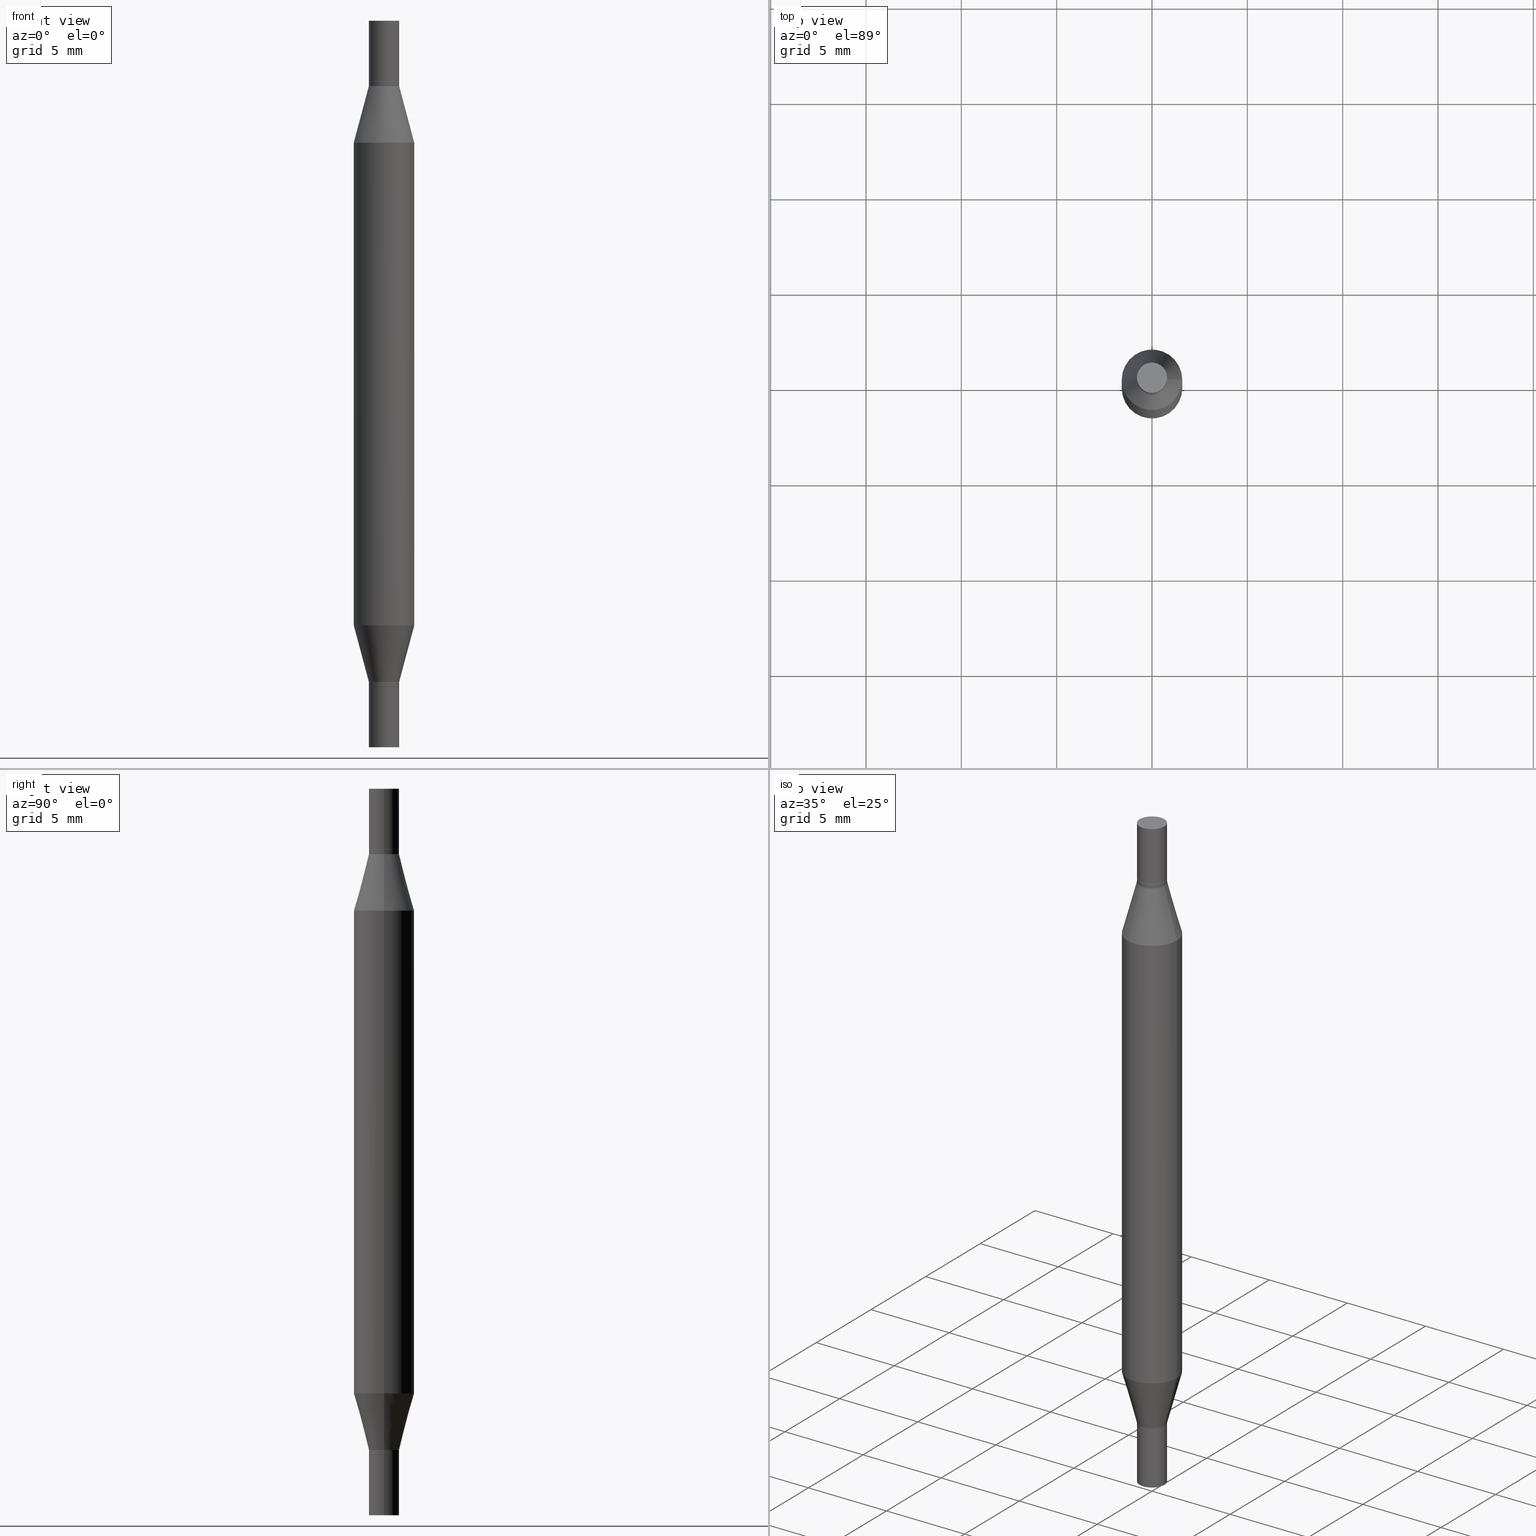
[diagram: canonical four-view strip — front | top / right | iso, engineering-drawing reading convention]
A machine part, canonical four-view strip (front | top / right | iso — engineering-drawing reading convention). The complete STEP part file that produces these views, byte-faithful:
ISO-10303-21;
HEADER;
FILE_DESCRIPTION (( 'STEP AP203' ),
    '1' );
FILE_NAME ('31172.STEP',
    '2024-03-04T15:58:28',
    ( '' ),
    ( '' ),
    'SwSTEP 2.0',
    'SolidWorks 2023',
    '' );
FILE_SCHEMA (( 'CONFIG_CONTROL_DESIGN' ));
ENDSEC;

DATA;
#1 = EDGE_CURVE ( 'NONE', #288, #554, #208, .T. ) ;
#2 = VERTEX_POINT ( 'NONE', #670 ) ;
#3 = CYLINDRICAL_SURFACE ( 'NONE', #13, 0.03124999999999992367 ) ;
#4 = CARTESIAN_POINT ( 'NONE',  ( 3.362519608504562821E-29, -4.362328197816536805E-16, -0.1249999999999993477 ) ) ;
#5 = ORIENTED_EDGE ( 'NONE', *, *, #440, .F. ) ;
#6 = ORIENTED_EDGE ( 'NONE', *, *, #871, .T. ) ;
#7 = CYLINDRICAL_SURFACE ( 'NONE', #793, 0.03124999999999992367 ) ;
#8 = DIRECTION ( 'NONE',  ( -0.2588190451025224048, 5.211531920934556564E-15, 0.9659258262890678681 ) ) ;
#9 = VERTEX_POINT ( 'NONE', #831 ) ;
#10 = AXIS2_PLACEMENT_3D ( 'NONE', #234, #873, #941 ) ;
#11 = CARTESIAN_POINT ( 'NONE',  ( 3.362519608504562821E-29, -4.362328197816536805E-16, -0.1249999999999993477 ) ) ;
#12 = CIRCLE ( 'NONE', #463, 0.03124999999999992367 ) ;
#13 = AXIS2_PLACEMENT_3D ( 'NONE', #299, #309, #617 ) ;
#14 = LINE ( 'NONE', #623, #563 ) ;
#15 = AXIS2_PLACEMENT_3D ( 'NONE', #859, #105, #943 ) ;
#16 = DIRECTION ( 'NONE',  ( -2.445468806185136597E-29, 3.491481338843145583E-15, 1.000000000000000000 ) ) ;
#17 = DIRECTION ( 'NONE',  ( 1.000000000000000000, -6.982962677686266711E-15, 0.000000000000000000 ) ) ;
#18 = CARTESIAN_POINT ( 'NONE',  ( -0.03124999999999992367, -2.567603083009074019E-16, -0.1349999999999997868 ) ) ;
#19 = EDGE_CURVE ( 'NONE', #2, #273, #753, .T. ) ;
#20 = CARTESIAN_POINT ( 'NONE',  ( 3.576687321579069994E-29, -5.368277968210015545E-15, -1.500000000000000222 ) ) ;
#21 = ORIENTED_EDGE ( 'NONE', *, *, #871, .F. ) ;
#22 = DIRECTION ( 'NONE',  ( 1.000000000000000000, -6.982962677686265133E-15, 0.000000000000000000 ) ) ;
#23 = EDGE_CURVE ( 'NONE', #701, #216, #132, .T. ) ;
#24 = CARTESIAN_POINT ( 'NONE',  ( 3.668203209277704895E-29, -5.237222008264718177E-15, -1.500000000000000222 ) ) ;
#25 = ORIENTED_EDGE ( 'NONE', *, *, #421, .F. ) ;
#26 = APPROVAL_ROLE ( '' ) ;
#27 = DIRECTION ( 'NONE',  ( -2.445468806185136597E-29, -3.491805094961124077E-15, -1.000000000000000000 ) ) ;
#28 = DIRECTION ( 'NONE',  ( -2.445468806185136597E-29, 3.491481338843145583E-15, 1.000000000000000000 ) ) ;
#29 = ADVANCED_FACE ( 'NONE', ( #475 ), #97, .F. ) ;
#30 = EDGE_LOOP ( 'NONE', ( #113, #794, #640, #6 ) ) ;
#31 = DATE_AND_TIME ( #633, #280 ) ;
#32 = LINE ( 'NONE', #95, #528 ) ;
#33 = DIRECTION ( 'NONE',  ( 1.000000000000000000, -6.982962677686265922E-15, 4.876176775795935793E-29 ) ) ;
#34 = ORIENTED_EDGE ( 'NONE', *, *, #137, .T. ) ;
#35 = LINE ( 'NONE', #330, #101 ) ;
#36 = DIRECTION ( 'NONE',  ( -2.445468806185136597E-29, 3.491481338843145583E-15, 1.000000000000000000 ) ) ;
#37 = ORIENTED_EDGE ( 'NONE', *, *, #704, .F. ) ;
#38 = DIRECTION ( 'NONE',  ( -0.000000000000000000, -3.491643216902134830E-15, -1.000000000000000000 ) ) ;
#39 = DIRECTION ( 'NONE',  ( 1.000000000000000000, -6.982962677686266711E-15, 0.000000000000000000 ) ) ;
#40 = ADVANCED_FACE ( 'NONE', ( #470 ), #384, .T. ) ;
#41 = CIRCLE ( 'NONE', #226, 0.03124999999999992367 ) ;
#42 = CARTESIAN_POINT ( 'NONE',  ( 3.362519608504562821E-29, -4.362328197816536805E-16, -0.1249999999999993477 ) ) ;
#43 = EDGE_LOOP ( 'NONE', ( #832, #764 ) ) ;
#44 = LINE ( 'NONE', #486, #612 ) ;
#45 = ADVANCED_FACE ( 'NONE', ( #157 ), #712, .T. ) ;
#46 = FACE_OUTER_BOUND ( 'NONE', #214, .T. ) ;
#47 = ORIENTED_EDGE ( 'NONE', *, *, #329, .F. ) ;
#48 = DIRECTION ( 'NONE',  ( -2.445468806185136597E-29, 3.491481338843145583E-15, 1.000000000000000000 ) ) ;
#49 = LINE ( 'NONE', #344, #579 ) ;
#50 = ADVANCED_FACE ( 'NONE', ( #856 ), #780, .F. ) ;
#51 = ORIENTED_EDGE ( 'NONE', *, *, #663, .T. ) ;
#52 = APPROVAL_DATE_TIME ( #282, #303 ) ;
#53 = DIRECTION ( 'NONE',  ( -2.445468806185136597E-29, 3.491481338843145583E-15, 1.000000000000000000 ) ) ;
#54 = DIRECTION ( 'NONE',  ( 2.445468806185136597E-29, 3.491805094961124077E-15, 1.000000000000000000 ) ) ;
#55 = PRODUCT ( '31172', '31172', '', ( #94 ) ) ;
#56 = CONICAL_SURFACE ( 'NONE', #193, 0.03074999999999999956, 0.7853981633974739252 ) ;
#57 = CONICAL_SURFACE ( 'NONE', #775, 0.03124999999999992367, 0.2617993877991511287 ) ;
#58 = ORIENTED_EDGE ( 'NONE', *, *, #909, .T. ) ;
#59 = DIRECTION ( 'NONE',  ( -2.445468806185136597E-29, 3.491481338843145583E-15, 1.000000000000000000 ) ) ;
#60 = DIRECTION ( 'NONE',  ( 1.000000000000000000, -6.982962677686270655E-15, 0.000000000000000000 ) ) ;
#61 = DIRECTION ( 'NONE',  ( -2.445468806185136877E-29, -3.491805094961123683E-15, -1.000000000000000000 ) ) ;
#62 = EDGE_LOOP ( 'NONE', ( #371, #5, #108, #136 ) ) ;
#63 = DIRECTION ( 'NONE',  ( -2.445468806185136597E-29, -3.491805094961124077E-15, -1.000000000000000000 ) ) ;
#64 = ADVANCED_FACE ( 'NONE', ( #480 ), #635, .F. ) ;
#65 = CONICAL_SURFACE ( 'NONE', #628, 0.03124999999999992367, 0.2617993877991511287 ) ;
#66 = ORIENTED_EDGE ( 'NONE', *, *, #685, .T. ) ;
#67 = CONICAL_SURFACE ( 'NONE', #260, 0.03074999999999999956, 0.7853981633974739252 ) ;
#68 = DIRECTION ( 'NONE',  ( -2.445468806185136597E-29, -3.491805094961124077E-15, -1.000000000000000000 ) ) ;
#69 = AXIS2_PLACEMENT_3D ( 'NONE', #404, #249, #863 ) ;
#70 = DIRECTION ( 'NONE',  ( -2.445468806185136597E-29, -3.491805094961124077E-15, -1.000000000000000000 ) ) ;
#71 = EDGE_CURVE ( 'NONE', #667, #412, #479, .T. ) ;
#72 = ORIENTED_EDGE ( 'NONE', *, *, #691, .T. ) ;
#73 = ORIENTED_EDGE ( 'NONE', *, *, #141, .T. ) ;
#74 = CARTESIAN_POINT ( 'NONE',  ( 0.03125000000000000000, -6.544504034593494659E-16, -0.1249999999999993477 ) ) ;
#75 = CARTESIAN_POINT ( 'NONE',  ( 3.362519608504562821E-29, -4.362328197816536805E-16, -0.1249999999999993477 ) ) ;
#76 = ORIENTED_EDGE ( 'NONE', *, *, #248, .T. ) ;
#77 = ADVANCED_FACE ( 'NONE', ( #620 ), #923, .T. ) ;
#78 = CARTESIAN_POINT ( 'NONE',  ( 0.000000000000000000, 0.000000000000000000, 0.000000000000000000 ) ) ;
#79 = DIRECTION ( 'NONE',  ( 1.000000000000000000, -6.982962677686265922E-15, 0.000000000000000000 ) ) ;
#80 = DIRECTION ( 'NONE',  ( 0.2588190451025224048, 1.565188264969613882E-15, 0.9659258262890678681 ) ) ;
#81 = CONICAL_SURFACE ( 'NONE', #209, 0.03124999999999992367, 0.2617993877991511287 ) ;
#82 = ADVANCED_FACE ( 'NONE', ( #847 ), #718, .F. ) ;
#83 = DIRECTION ( 'NONE',  ( -2.438088387897959208E-29, -3.491805094961123683E-15, -1.000000000000000000 ) ) ;
#84 = VECTOR ( 'NONE', #147, 39.37007874015748143 ) ;
#85 = CONICAL_SURFACE ( 'NONE', #370, 0.03124999999999992367, 0.2617993877991511287 ) ;
#86 = LINE ( 'NONE', #513, #728 ) ;
#87 = DIRECTION ( 'NONE',  ( 2.438088387897959208E-29, 3.491805094961123683E-15, 1.000000000000000000 ) ) ;
#88 = ORIENTED_EDGE ( 'NONE', *, *, #691, .F. ) ;
#89 = CARTESIAN_POINT ( 'NONE',  ( 0.03074999999999999956, -6.509589221205063602E-16, -0.1249999999999993477 ) ) ;
#90 = CARTESIAN_POINT ( 'NONE',  ( -0.03125000000000000000, -3.604438916223908722E-18, -0.1249999999999993477 ) ) ;
#91 = EDGE_CURVE ( 'NONE', #760, #338, #416, .T. ) ;
#92 = CARTESIAN_POINT ( 'NONE',  ( 2.182175836777294352E-16, 0.03124999999999955938, -0.1249999999999996253 ) ) ;
#93 = EDGE_LOOP ( 'NONE', ( #498, #521, #976, #434 ) ) ;
#94 = MECHANICAL_CONTEXT ( 'NONE', #669, 'mechanical' ) ;
#95 = CARTESIAN_POINT ( 'NONE',  ( -0.03124999999999992367, -5.023074262922841489E-15, -1.499999999999999556 ) ) ;
#96 = PRODUCT_DEFINITION ( 'UNKNOWN', '', #680, #497 ) ;
#97 = PLANE ( 'NONE',  #850 ) ;
#98 = ORIENTED_EDGE ( 'NONE', *, *, #297, .F. ) ;
#99 = PERSON_AND_ORGANIZATION ( #803, #855 ) ;
#100 = DIRECTION ( 'NONE',  ( 1.000000000000000000, -6.982962677686265922E-15, 0.000000000000000000 ) ) ;
#101 = VECTOR ( 'NONE', #950, 39.37007874015748143 ) ;
#102 = CIRCLE ( 'NONE', #874, 0.03124999999999992367 ) ;
#103 = DIRECTION ( 'NONE',  ( -2.445468806185136597E-29, 3.491481338843145583E-15, 1.000000000000000000 ) ) ;
#104 = ORIENTED_EDGE ( 'NONE', *, *, #493, .T. ) ;
#105 = DIRECTION ( 'NONE',  ( 2.445468806185136597E-29, 3.491805094961124077E-15, 1.000000000000000000 ) ) ;
#106 = CARTESIAN_POINT ( 'NONE',  ( 3.362519608504562821E-29, -4.362328197816536805E-16, -0.1249999999999993477 ) ) ;
#107 = DIRECTION ( 'NONE',  ( 1.000000000000000000, -6.982962677686265133E-15, 0.000000000000000000 ) ) ;
#108 = ORIENTED_EDGE ( 'NONE', *, *, #922, .T. ) ;
#109 = DIRECTION ( 'NONE',  ( -0.7071067811865656694, 2.382025595312421833E-15, -0.7071067811865294761 ) ) ;
#110 = ADVANCED_FACE ( 'NONE', ( #311 ), #700, .F. ) ;
#111 = FACE_OUTER_BOUND ( 'NONE', #799, .T. ) ;
#112 = DIRECTION ( 'NONE',  ( 0.2588190451025224048, -5.180148453816013512E-15, -0.9659258262890678681 ) ) ;
#113 = ORIENTED_EDGE ( 'NONE', *, *, #427, .F. ) ;
#114 = PERSON_AND_ORGANIZATION_ROLE ( 'creator' ) ;
#115 = ADVANCED_FACE ( 'NONE', ( #639 ), #245, .T. ) ;
#116 = DIRECTION ( 'NONE',  ( 1.000000000000000000, -6.982962677686280121E-15, 0.000000000000000000 ) ) ;
#117 = AXIS2_PLACEMENT_3D ( 'NONE', #4, #853, #374 ) ;
#118 = AXIS2_PLACEMENT_3D ( 'NONE', #106, #410, #726 ) ;
#119 = CIRCLE ( 'NONE', #835, 0.03074999999999999956 ) ;
#120 = PLANE ( 'NONE',  #481 ) ;
#121 = LOCAL_TIME ( 10, 58, 28.00000000000000000, #484 ) ;
#122 = ORIENTED_EDGE ( 'NONE', *, *, #551, .F. ) ;
#123 = DIRECTION ( 'NONE',  ( -0.7071067811865656694, 2.382025595312421833E-15, -0.7071067811865294761 ) ) ;
#124 = DIRECTION ( 'NONE',  ( 1.000000000000000000, -6.982962677686276966E-15, 0.000000000000000000 ) ) ;
#125 = ORIENTED_EDGE ( 'NONE', *, *, #91, .T. ) ;
#126 = DATE_AND_TIME ( #418, #465 ) ;
#127 = CARTESIAN_POINT ( 'NONE',  ( -0.03124999999999992367, -2.235881598987740455E-16, -0.1254999999999992510 ) ) ;
#128 = EDGE_CURVE ( 'NONE', #574, #660, #611, .T. ) ;
#129 = CARTESIAN_POINT ( 'NONE',  ( 0.000000000000000000, -2.618732412676602503E-15, -0.7499999999999997780 ) ) ;
#130 = EDGE_LOOP ( 'NONE', ( #66, #752, #163, #444 ) ) ;
#131 = DIRECTION ( 'NONE',  ( 1.000000000000000000, -6.982962677686265133E-15, 0.000000000000000000 ) ) ;
#132 = CIRCLE ( 'NONE', #399, 0.03125000000000000000 ) ;
#133 = DIRECTION ( 'NONE',  ( 2.445468806185136597E-29, 3.491805094961124077E-15, 1.000000000000000000 ) ) ;
#134 = ORIENTED_EDGE ( 'NONE', *, *, #347, .F. ) ;
#135 = CARTESIAN_POINT ( 'NONE',  ( 0.000000000000000000, -5.237464825353201062E-15, -1.499999999999999556 ) ) ;
#136 = ORIENTED_EDGE ( 'NONE', *, *, #966, .T. ) ;
#137 = EDGE_CURVE ( 'NONE', #667, #554, #561, .T. ) ;
#138 = DIRECTION ( 'NONE',  ( 2.445468806185136597E-29, 3.491805094961124077E-15, 1.000000000000000000 ) ) ;
#139 = ORIENTED_EDGE ( 'NONE', *, *, #262, .F. ) ;
#140 = DIRECTION ( 'NONE',  ( 1.000000000000000000, -6.982962677686266711E-15, 0.000000000000000000 ) ) ;
#141 = EDGE_CURVE ( 'NONE', #729, #697, #771, .T. ) ;
#142 = ORIENTED_EDGE ( 'NONE', *, *, #672, .F. ) ;
#143 = CONICAL_SURFACE ( 'NONE', #358, 0.03074999999999999956, 0.7853981633974739252 ) ;
#144 = AXIS2_PLACEMENT_3D ( 'NONE', #827, #138, #445 ) ;
#145 = EDGE_LOOP ( 'NONE', ( #235, #714 ) ) ;
#146 = DIRECTION ( 'NONE',  ( -2.445468806185136597E-29, 3.491481338843145583E-15, 1.000000000000000000 ) ) ;
#147 = DIRECTION ( 'NONE',  ( -0.2588190451025224048, -1.597197180879706043E-15, -0.9659258262890678681 ) ) ;
#148 = ADVANCED_FACE ( 'NONE', ( #928 ), #591, .F. ) ;
#149 = EDGE_LOOP ( 'NONE', ( #37, #302, #488, #424 ) ) ;
#150 = DIRECTION ( 'NONE',  ( 1.000000000000000000, -6.982962677686266711E-15, 4.876176775795935793E-29 ) ) ;
#151 = DIRECTION ( 'NONE',  ( 2.445468806185136597E-29, 3.491805094961124077E-15, 1.000000000000000000 ) ) ;
#152 = EDGE_CURVE ( 'NONE', #456, #185, #411, .T. ) ;
#153 = ORIENTED_EDGE ( 'NONE', *, *, #347, .T. ) ;
#154 = CYLINDRICAL_SURFACE ( 'NONE', #978, 0.06250000000000000000 ) ;
#155 = CARTESIAN_POINT ( 'NONE',  ( 0.06250000000000000000, -5.673899992708591942E-15, -1.499999999999999556 ) ) ;
#156 = CC_DESIGN_APPROVAL ( #927, ( #680 ) ) ;
#157 = FACE_OUTER_BOUND ( 'NONE', #844, .T. ) ;
#158 = ORIENTED_EDGE ( 'NONE', *, *, #1, .T. ) ;
#159 = LINE ( 'NONE', #533, #808 ) ;
#160 = CIRCLE ( 'NONE', #343, 0.03125000000000000000 ) ;
#161 = CARTESIAN_POINT ( 'NONE',  ( 0.000000000000000000, 0.000000000000000000, 0.000000000000000000 ) ) ;
#162 = DIRECTION ( 'NONE',  ( 2.438088387897959208E-29, 3.491805094961123683E-15, 1.000000000000000000 ) ) ;
#163 = ORIENTED_EDGE ( 'NONE', *, *, #71, .F. ) ;
#164 = DIRECTION ( 'NONE',  ( 0.7071067811865656694, -7.406779323393341342E-15, -0.7071067811865294761 ) ) ;
#165 = ADVANCED_FACE ( 'NONE', ( #572 ), #562, .T. ) ;
#166 = CARTESIAN_POINT ( 'NONE',  ( 3.338064920442711275E-29, -4.711508707312672701E-16, -0.1349999999999997868 ) ) ;
#167 = DIRECTION ( 'NONE',  ( -2.445468806185136597E-29, 3.491481338843145583E-15, 1.000000000000000000 ) ) ;
#168 = ORIENTED_EDGE ( 'NONE', *, *, #631, .F. ) ;
#169 =( LENGTH_UNIT ( ) NAMED_UNIT ( * ) SI_UNIT ( $, .METRE. ) );
#170 = DIRECTION ( 'NONE',  ( 2.445468806185136597E-29, 3.491805094961124077E-15, 1.000000000000000000 ) ) ;
#171 = DIRECTION ( 'NONE',  ( -1.000000000000000000, 6.982962677686265922E-15, -4.876176775795935793E-29 ) ) ;
#172 = MANIFOLD_SOLID_BREP ( 'Body-Move/Copy2[1]', #709 ) ;
#173 = ORIENTED_EDGE ( 'NONE', *, *, #369, .T. ) ;
#174 = LINE ( 'NONE', #89, #452 ) ;
#175 = CARTESIAN_POINT ( 'NONE',  ( 3.362519608504562821E-29, -4.362328197816536805E-16, -0.1249999999999993477 ) ) ;
#176 = CIRCLE ( 'NONE', #597, 0.06250000000000000000 ) ;
#177 = AXIS2_PLACEMENT_3D ( 'NONE', #135, #885, #520 ) ;
#178 = ADVANCED_FACE ( 'NONE', ( #46 ), #65, .T. ) ;
#179 = DIRECTION ( 'NONE',  ( -2.445468806185136597E-29, -3.491805094961124077E-15, -1.000000000000000000 ) ) ;
#180 = ORIENTED_EDGE ( 'NONE', *, *, #778, .F. ) ;
#181 = CARTESIAN_POINT ( 'NONE',  ( 0.03125000000000000000, -6.544504034593494659E-16, -0.1249999999999993477 ) ) ;
#182 = FACE_OUTER_BOUND ( 'NONE', #376, .T. ) ;
#183 = DIRECTION ( 'NONE',  ( 1.000000000000000000, -6.982962677686280121E-15, 0.000000000000000000 ) ) ;
#184 = ADVANCED_FACE ( 'NONE', ( #490 ), #694, .T. ) ;
#185 = VERTEX_POINT ( 'NONE', #187 ) ;
#186 = CARTESIAN_POINT ( 'NONE',  ( 0.03125000000000000000, -2.179747665892097452E-16, 5.463695987328526437E-16 ) ) ;
#187 = CARTESIAN_POINT ( 'NONE',  ( 0.03124999999999992367, -6.561963060068291569E-16, -0.1254999999999992510 ) ) ;
#188 = EDGE_LOOP ( 'NONE', ( #483, #809, #76, #969 ) ) ;
#189 = CLOSED_SHELL ( 'NONE', ( #178, #791, #165, #275, #287, #609, #507, #848, #395, #115, #811, #556, #40, #858, #474, #798 ) ) ;
#190 = EDGE_CURVE ( 'NONE', #636, #905, #336, .T. ) ;
#191 = DIRECTION ( 'NONE',  ( 2.445468806185136597E-29, 3.491805094961124077E-15, 1.000000000000000000 ) ) ;
#192 = AXIS2_PLACEMENT_3D ( 'NONE', #42, #659, #894 ) ;
#193 = AXIS2_PLACEMENT_3D ( 'NONE', #864, #27, #406 ) ;
#194 = VECTOR ( 'NONE', #109, 39.37007874015748143 ) ;
#195 = CARTESIAN_POINT ( 'NONE',  ( 3.338064920442711275E-29, -4.711508707312672701E-16, -0.1349999999999997868 ) ) ;
#196 = EDGE_LOOP ( 'NONE', ( #607, #153 ) ) ;
#197 = CALENDAR_DATE ( 2024, 4, 3 ) ;
#198 = CARTESIAN_POINT ( 'NONE',  ( -0.03074999999999999956, -2.252725063501790759E-16, -0.1249999999999993477 ) ) ;
#199 = EDGE_CURVE ( 'NONE', #660, #574, #886, .T. ) ;
#200 = CARTESIAN_POINT ( 'NONE',  ( 0.000000000000000000, -5.237464825353201062E-15, -1.499999999999999556 ) ) ;
#201 = ORIENTED_EDGE ( 'NONE', *, *, #248, .F. ) ;
#202 = DATE_TIME_ROLE ( 'creation_date' ) ;
#203 = CARTESIAN_POINT ( 'NONE',  ( 0.03125000000000000000, -5.455439591942414011E-15, -1.500000000000000222 ) ) ;
#204 = FACE_OUTER_BOUND ( 'NONE', #781, .T. ) ;
#205 = ORIENTED_EDGE ( 'NONE', *, *, #819, .F. ) ;
#206 = CARTESIAN_POINT ( 'NONE',  ( 3.052858238161220135E-29, -4.358672472825856581E-15, -1.248373412263472870 ) ) ;
#207 = AXIS2_PLACEMENT_3D ( 'NONE', #705, #28, #696 ) ;
#208 = CIRCLE ( 'NONE', #224, 0.06250000000000000000 ) ;
#209 = AXIS2_PLACEMENT_3D ( 'NONE', #448, #779, #758 ) ;
#210 = CIRCLE ( 'NONE', #872, 0.03124999999999992367 ) ;
#211 = EDGE_CURVE ( 'NONE', #360, #625, #527, .T. ) ;
#212 = VECTOR ( 'NONE', #61, 39.37007874015748143 ) ;
#213 = DIRECTION ( 'NONE',  ( -0.000000000000000000, -3.491643216902134830E-15, -1.000000000000000000 ) ) ;
#214 = EDGE_LOOP ( 'NONE', ( #397, #173, #532, #393 ) ) ;
#215 = LINE ( 'NONE', #658, #212 ) ;
#216 = VERTEX_POINT ( 'NONE', #946 ) ;
#217 = EDGE_CURVE ( 'NONE', #332, #895, #952, .T. ) ;
#218 = EDGE_LOOP ( 'NONE', ( #594, #651 ) ) ;
#219 = DIRECTION ( 'NONE',  ( -2.445468806185136877E-29, 3.491481338843145188E-15, 1.000000000000000000 ) ) ;
#220 = VERTEX_POINT ( 'NONE', #279 ) ;
#221 = CYLINDRICAL_SURFACE ( 'NONE', #548, 0.03125000000000000000 ) ;
#222 = ADVANCED_FACE ( 'NONE', ( #878 ), #428, .T. ) ;
#223 = CARTESIAN_POINT ( 'NONE',  ( -0.03124999999999992367, -2.567603083009074019E-16, -0.1349999999999997868 ) ) ;
#224 = AXIS2_PLACEMENT_3D ( 'NONE', #972, #225, #60 ) ;
#225 = DIRECTION ( 'NONE',  ( -2.445468806185136597E-29, 3.491481338843145583E-15, 1.000000000000000000 ) ) ;
#226 = AXIS2_PLACEMENT_3D ( 'NONE', #668, #970, #596 ) ;
#227 = DIRECTION ( 'NONE',  ( 1.000000000000000000, -6.982962677686262766E-15, 0.000000000000000000 ) ) ;
#228 = DIRECTION ( 'NONE',  ( -2.445468806185136597E-29, -3.491805094961124077E-15, -1.000000000000000000 ) ) ;
#229 = CC_DESIGN_DATE_AND_TIME_ASSIGNMENT ( #126, #492, ( #517 ) ) ;
#230 = ORIENTED_EDGE ( 'NONE', *, *, #778, .T. ) ;
#231 = DIMENSIONAL_EXPONENTS ( 1.000000000000000000, 0.000000000000000000, 0.000000000000000000, 0.000000000000000000, 0.000000000000000000, 0.000000000000000000, 0.000000000000000000 ) ;
#232 = DIRECTION ( 'NONE',  ( 1.000000000000000000, -6.982962677686265133E-15, 0.000000000000000000 ) ) ;
#233 = LINE ( 'NONE', #223, #84 ) ;
#234 = CARTESIAN_POINT ( 'NONE',  ( 0.000000000000000000, -5.237464825353201062E-15, -1.499999999999999556 ) ) ;
#235 = ORIENTED_EDGE ( 'NONE', *, *, #512, .T. ) ;
#236 = CYLINDRICAL_SURFACE ( 'NONE', #630, 0.03124999999999992367 ) ;
#237 = DIRECTION ( 'NONE',  ( -0.2588190451025224048, -1.597197180879706043E-15, -0.9659258262890678681 ) ) ;
#238 = AXIS2_PLACEMENT_3D ( 'NONE', #20, #407, #33 ) ;
#239 = DIRECTION ( 'NONE',  ( 2.445468806185136597E-29, 3.491805094961124077E-15, 1.000000000000000000 ) ) ;
#240 = AXIS2_PLACEMENT_3D ( 'NONE', #610, #70, #461 ) ;
#241 = ADVANCED_FACE ( 'NONE', ( #733 ), #120, .F. ) ;
#242 = AXIS2_PLACEMENT_3D ( 'NONE', #394, #703, #22 ) ;
#243 = ORIENTED_EDGE ( 'NONE', *, *, #763, .T. ) ;
#244 = DIRECTION ( 'NONE',  ( 2.445468806185136597E-29, 3.491805094961124077E-15, 1.000000000000000000 ) ) ;
#245 = CYLINDRICAL_SURFACE ( 'NONE', #10, 0.03124999999999992367 ) ;
#246 = UNCERTAINTY_MEASURE_WITH_UNIT (LENGTH_MEASURE( 1.000000000000000082E-05 ), #795, 'distance_accuracy_value', 'NONE');
#247 = EDGE_LOOP ( 'NONE', ( #867, #673, #840, #690 ) ) ;
#248 = EDGE_CURVE ( 'NONE', #409, #876, #852, .T. ) ;
#249 = DIRECTION ( 'NONE',  ( 0.000000000000000000, 0.000000000000000000, 1.000000000000000000 ) ) ;
#250 = DIRECTION ( 'NONE',  ( -2.445468806185136597E-29, -3.491805094961124077E-15, -1.000000000000000000 ) ) ;
#251 = DIRECTION ( 'NONE',  ( 1.000000000000000000, -6.982962677686262766E-15, 0.000000000000000000 ) ) ;
#252 = EDGE_LOOP ( 'NONE', ( #281, #514, #443, #578 ) ) ;
#253 = CARTESIAN_POINT ( 'NONE',  ( 3.362519608504562821E-29, -4.800786840909326507E-15, -1.375000000000000222 ) ) ;
#254 = DIRECTION ( 'NONE',  ( -2.445468806185136877E-29, -3.491805094961123683E-15, -1.000000000000000000 ) ) ;
#255 = EDGE_CURVE ( 'NONE', #338, #701, #49, .T. ) ;
#256 = DIRECTION ( 'NONE',  ( 2.445468806185136597E-29, 3.491805094961124077E-15, 1.000000000000000000 ) ) ;
#257 = VERTEX_POINT ( 'NONE', #508 ) ;
#258 =( NAMED_UNIT ( * ) SI_UNIT ( $, .STERADIAN. ) SOLID_ANGLE_UNIT ( ) );
#259 = DIRECTION ( 'NONE',  ( -2.445468806185136877E-29, 3.491481338843145188E-15, 1.000000000000000000 ) ) ;
#260 = AXIS2_PLACEMENT_3D ( 'NONE', #75, #228, #79 ) ;
#261 = VECTOR ( 'NONE', #123, 39.37007874015748143 ) ;
#262 = EDGE_CURVE ( 'NONE', #760, #216, #650, .T. ) ;
#263 = CARTESIAN_POINT ( 'NONE',  ( 0.03074999999999999956, -6.509589221205063602E-16, -0.1249999999999993477 ) ) ;
#264 = EDGE_LOOP ( 'NONE', ( #471, #243, #104, #168 ) ) ;
#265 = PERSON_AND_ORGANIZATION ( #803, #855 ) ;
#266 = CYLINDRICAL_SURFACE ( 'NONE', #614, 0.03124999999999992367 ) ;
#267 = CARTESIAN_POINT ( 'NONE',  ( 3.362519608504562821E-29, -4.800786840909326507E-15, -1.375000000000000222 ) ) ;
#268 = EDGE_CURVE ( 'NONE', #388, #220, #773, .T. ) ;
#269 = ORIENTED_EDGE ( 'NONE', *, *, #922, .F. ) ;
#270 = APPROVAL_DATE_TIME ( #425, #927 ) ;
#271 = CARTESIAN_POINT ( 'NONE',  ( 3.361296874101471140E-29, -4.379787223291353929E-16, -0.1254999999999992510 ) ) ;
#272 = CYLINDRICAL_SURFACE ( 'NONE', #306, 0.06250000000000000000 ) ;
#273 = VERTEX_POINT ( 'NONE', #359 ) ;
#274 = PERSON_AND_ORGANIZATION ( #803, #855 ) ;
#275 = ADVANCED_FACE ( 'NONE', ( #955 ), #272, .T. ) ;
#276 = DIRECTION ( 'NONE',  ( 1.000000000000000000, -6.982962677686270655E-15, 0.000000000000000000 ) ) ;
#277 = CC_DESIGN_APPROVAL ( #303, ( #517 ) ) ;
#278 = CIRCLE ( 'NONE', #947, 0.06250000000000000000 ) ;
#279 = CARTESIAN_POINT ( 'NONE',  ( 0.03074999999999999956, -5.015512943248179335E-15, -1.375000000000000222 ) ) ;
#280 = LOCAL_TIME ( 10, 58, 28.00000000000000000, #324 ) ;
#281 = ORIENTED_EDGE ( 'NONE', *, *, #909, .F. ) ;
#282 = DATE_AND_TIME ( #965, #529 ) ;
#283 = CARTESIAN_POINT ( 'NONE',  ( 3.052858238161220135E-29, -8.783881839976021314E-16, -0.2516265877365266856 ) ) ;
#284 = CARTESIAN_POINT ( 'NONE',  ( 3.338064920442711275E-29, -4.765872027520892492E-15, -1.364999999999999769 ) ) ;
#285 = ORIENTED_EDGE ( 'NONE', *, *, #152, .T. ) ;
#286 = DIRECTION ( 'NONE',  ( 1.000000000000000000, -6.982962677686266711E-15, 0.000000000000000000 ) ) ;
#287 = ADVANCED_FACE ( 'NONE', ( #968 ), #81, .T. ) ;
#288 = VERTEX_POINT ( 'NONE', #469 ) ;
#289 = LINE ( 'NONE', #426, #665 ) ;
#290 = AXIS2_PLACEMENT_3D ( 'NONE', #195, #179, #423 ) ;
#291 = EDGE_CURVE ( 'NONE', #895, #554, #818, .T. ) ;
#292 = AXIS2_PLACEMENT_3D ( 'NONE', #622, #68, #925 ) ;
#293 = ORIENTED_EDGE ( 'NONE', *, *, #600, .T. ) ;
#294 = CC_DESIGN_APPROVAL ( #499, ( #96 ) ) ;
#295 = FACE_OUTER_BOUND ( 'NONE', #363, .T. ) ;
#296 = ORIENTED_EDGE ( 'NONE', *, *, #141, .F. ) ;
#297 = EDGE_CURVE ( 'NONE', #338, #760, #516, .T. ) ;
#298 = ORIENTED_EDGE ( 'NONE', *, *, #672, .T. ) ;
#299 = CARTESIAN_POINT ( 'NONE',  ( 0.000000000000000000, 0.000000000000000000, 0.000000000000000000 ) ) ;
#300 = LINE ( 'NONE', #606, #451 ) ;
#301 = EDGE_LOOP ( 'NONE', ( #323, #73 ) ) ;
#302 = ORIENTED_EDGE ( 'NONE', *, *, #375, .T. ) ;
#303 = APPROVAL ( #510, 'UNSPECIFIED' ) ;
#304 = FACE_OUTER_BOUND ( 'NONE', #890, .T. ) ;
#305 = CARTESIAN_POINT ( 'NONE',  ( 3.362519608504562821E-29, -4.362328197816536805E-16, -0.1249999999999993477 ) ) ;
#306 = AXIS2_PLACEMENT_3D ( 'NONE', #666, #502, #812 ) ;
#307 = ORIENTED_EDGE ( 'NONE', *, *, #91, .F. ) ;
#308 = CIRCLE ( 'NONE', #405, 0.03124999999999992367 ) ;
#309 = DIRECTION ( 'NONE',  ( -2.445468806185136597E-29, 3.491481338843145583E-15, 1.000000000000000000 ) ) ;
#310 = CARTESIAN_POINT ( 'NONE',  ( 0.03124999999999992367, -6.893684544089624146E-16, -0.1349999999999997868 ) ) ;
#311 = FACE_OUTER_BOUND ( 'NONE', #857, .T. ) ;
#312 = ORIENTED_EDGE ( 'NONE', *, *, #590, .F. ) ;
#313 = DIRECTION ( 'NONE',  ( -2.445468806185136597E-29, -3.491805094961124077E-15, -1.000000000000000000 ) ) ;
#314 = CARTESIAN_POINT ( 'NONE',  ( -0.03124999999999992367, -4.560411958955367440E-15, -1.364999999999999769 ) ) ;
#315 = CARTESIAN_POINT ( 'NONE',  ( 3.362519608504562821E-29, -4.362328197816536805E-16, -0.1249999999999993477 ) ) ;
#316 = ORIENTED_EDGE ( 'NONE', *, *, #704, .T. ) ;
#317 = DIRECTION ( 'NONE',  ( -2.445468806185136597E-29, 3.491481338843145583E-15, 1.000000000000000000 ) ) ;
#318 = DIRECTION ( 'NONE',  ( -2.445468806185136877E-29, -3.491805094961123683E-15, -1.000000000000000000 ) ) ;
#319 = ADVANCED_FACE ( 'NONE', ( #843 ), #674, .T. ) ;
#320 = CARTESIAN_POINT ( 'NONE',  ( 0.000000000000000000, -5.237464825353201062E-15, -1.499999999999999556 ) ) ;
#321 = VECTOR ( 'NONE', #455, 39.37007874015748143 ) ;
#322 = CIRCLE ( 'NONE', #242, 0.03124999999999992367 ) ;
#323 = ORIENTED_EDGE ( 'NONE', *, *, #619, .T. ) ;
#324 = COORDINATED_UNIVERSAL_TIME_OFFSET ( 5, 0, .BEHIND. ) ;
#325 = CIRCLE ( 'NONE', #889, 0.06250000000000000000 ) ;
#326 = DIRECTION ( 'NONE',  ( 1.000000000000000000, -6.982962677686265922E-15, 0.000000000000000000 ) ) ;
#327 = DIRECTION ( 'NONE',  ( 2.438088387897960049E-29, -3.491481338843145188E-15, -1.000000000000000000 ) ) ;
#328 = ORIENTED_EDGE ( 'NONE', *, *, #152, .F. ) ;
#329 = EDGE_CURVE ( 'NONE', #429, #456, #710, .T. ) ;
#330 = CARTESIAN_POINT ( 'NONE',  ( 0.03074999999999999956, -5.015512943248179335E-15, -1.375000000000000222 ) ) ;
#331 = CARTESIAN_POINT ( 'NONE',  ( 3.576687321579069994E-29, -1.308131428568106629E-16, 5.463695987328526437E-16 ) ) ;
#332 = VERTEX_POINT ( 'NONE', #310 ) ;
#333 = LINE ( 'NONE', #938, #194 ) ;
#334 = CC_DESIGN_PERSON_AND_ORGANIZATION_ASSIGNMENT ( #707, #724, ( #55 ) ) ;
#335 = CARTESIAN_POINT ( 'NONE',  ( 3.052858238161220135E-29, -8.783881839976021314E-16, -0.2516265877365266856 ) ) ;
#336 = LINE ( 'NONE', #348, #385 ) ;
#337 = AXIS2_PLACEMENT_3D ( 'NONE', #768, #327, #171 ) ;
#338 = VERTEX_POINT ( 'NONE', #846 ) ;
#339 = AXIS2_PLACEMENT_3D ( 'NONE', #568, #797, #107 ) ;
#340 = CARTESIAN_POINT ( 'NONE',  ( 0.03125000000000000000, -2.179747665892097452E-16, 5.463695987328526437E-16 ) ) ;
#341 = FACE_OUTER_BOUND ( 'NONE', #621, .T. ) ;
#342 = VECTOR ( 'NONE', #254, 39.37007874015748143 ) ;
#343 = AXIS2_PLACEMENT_3D ( 'NONE', #910, #698, #17 ) ;
#344 = CARTESIAN_POINT ( 'NONE',  ( -0.03125000000000000000, 2.220446049250313081E-16, -1.537167215704658057E-30 ) ) ;
#345 = ORIENTED_EDGE ( 'NONE', *, *, #600, .F. ) ;
#346 = DIRECTION ( 'NONE',  ( 1.000000000000000000, -6.982962677686280121E-15, 0.000000000000000000 ) ) ;
#347 = EDGE_CURVE ( 'NONE', #9, #929, #805, .T. ) ;
#348 = CARTESIAN_POINT ( 'NONE',  ( 0.03124999999999992367, -6.893684544089624146E-16, -0.1349999999999997868 ) ) ;
#349 = EDGE_LOOP ( 'NONE', ( #88, #509, #293, #587 ) ) ;
#350 = DATE_AND_TIME ( #883, #121 ) ;
#351 = CYLINDRICAL_SURFACE ( 'NONE', #177, 0.03125000000000000000 ) ;
#352 = CARTESIAN_POINT ( 'NONE',  ( 3.668203209277704895E-29, 2.428170884860868470E-19, 5.463695987328526437E-16 ) ) ;
#353 = ORIENTED_EDGE ( 'NONE', *, *, #725, .F. ) ;
#354 = PERSON_AND_ORGANIZATION_ROLE ( 'classification_officer' ) ;
#355 = AXIS2_PLACEMENT_3D ( 'NONE', #936, #162, #396 ) ;
#356 = CARTESIAN_POINT ( 'NONE',  ( -0.03125000000000000000, -3.604438916223908722E-18, 5.463695987328533339E-16 ) ) ;
#357 = VECTOR ( 'NONE', #654, 39.37007874015748143 ) ;
#358 = AXIS2_PLACEMENT_3D ( 'NONE', #477, #708, #571 ) ;
#359 = CARTESIAN_POINT ( 'NONE',  ( -0.06250000000000000000, -1.319718469204259197E-15, -0.7499999999999997780 ) ) ;
#360 = VERTEX_POINT ( 'NONE', #688 ) ;
#361 = EDGE_CURVE ( 'NONE', #625, #360, #12, .T. ) ;
#362 = DIRECTION ( 'NONE',  ( 1.000000000000000000, -6.982962677686280121E-15, 0.000000000000000000 ) ) ;
#363 = EDGE_LOOP ( 'NONE', ( #446, #862 ) ) ;
#364 = DIRECTION ( 'NONE',  ( -2.445468806185136597E-29, 3.491481338843145583E-15, 1.000000000000000000 ) ) ;
#365 = EDGE_CURVE ( 'NONE', #574, #876, #300, .T. ) ;
#366 = ORIENTED_EDGE ( 'NONE', *, *, #211, .F. ) ;
#367 = CARTESIAN_POINT ( 'NONE',  ( 0.06250000000000000000, -1.314823351352993998E-15, -0.2516265877365266856 ) ) ;
#368 = AXIS2_PLACEMENT_3D ( 'NONE', #618, #133, #836 ) ;
#369 = EDGE_CURVE ( 'NONE', #412, #288, #926, .T. ) ;
#370 = AXIS2_PLACEMENT_3D ( 'NONE', #692, #920, #232 ) ;
#371 = ORIENTED_EDGE ( 'NONE', *, *, #582, .F. ) ;
#372 = LOCAL_TIME ( 10, 58, 28.00000000000000000, #891 ) ;
#373 = DIRECTION ( 'NONE',  ( -2.445468806185136877E-29, -3.491805094961123683E-15, -1.000000000000000000 ) ) ;
#374 = DIRECTION ( 'NONE',  ( 1.000000000000000000, -6.982962677686265922E-15, 0.000000000000000000 ) ) ;
#375 = EDGE_CURVE ( 'NONE', #257, #786, #233, .T. ) ;
#376 = EDGE_LOOP ( 'NONE', ( #122, #948, #417, #51 ) ) ;
#377 = ORIENTED_EDGE ( 'NONE', *, *, #390, .F. ) ;
#378 = CYLINDRICAL_SURFACE ( 'NONE', #292, 0.03124999999999992367 ) ;
#379 = DIRECTION ( 'NONE',  ( 1.000000000000000000, -6.982962677686266711E-15, 0.000000000000000000 ) ) ;
#380 = ORIENTED_EDGE ( 'NONE', *, *, #365, .T. ) ;
#381 = EDGE_LOOP ( 'NONE', ( #134, #569, #777, #879 ) ) ;
#382 = PLANE ( 'NONE',  #518 ) ;
#383 = DIRECTION ( 'NONE',  ( 1.000000000000000000, -6.982962677686266711E-15, 4.876176775795935793E-29 ) ) ;
#384 = CONICAL_SURFACE ( 'NONE', #769, 0.03124999999999992367, 0.2617993877991511287 ) ;
#385 = VECTOR ( 'NONE', #112, 39.37007874015748143 ) ;
#386 = CARTESIAN_POINT ( 'NONE',  ( 0.000000000000000000, -5.237464825353201062E-15, -1.499999999999999556 ) ) ;
#387 = CIRCLE ( 'NONE', #438, 0.06250000000000000000 ) ;
#388 = VERTEX_POINT ( 'NONE', #772 ) ;
#389 = FACE_OUTER_BOUND ( 'NONE', #381, .T. ) ;
#390 = EDGE_CURVE ( 'NONE', #876, #409, #821, .T. ) ;
#391 = CARTESIAN_POINT ( 'NONE',  ( -0.03074999999999999956, -2.244303331244765607E-16, -0.1249999999999993477 ) ) ;
#392 = DIRECTION ( 'NONE',  ( -2.445468806185136597E-29, -3.491805094961124077E-15, -1.000000000000000000 ) ) ;
#393 = ORIENTED_EDGE ( 'NONE', *, *, #137, .F. ) ;
#394 = CARTESIAN_POINT ( 'NONE',  ( 3.361296874101471140E-29, -4.379787223291353929E-16, -0.1254999999999992510 ) ) ;
#395 = ADVANCED_FACE ( 'NONE', ( #917 ), #67, .T. ) ;
#396 = DIRECTION ( 'NONE',  ( -1.000000000000000000, 6.982962677686265922E-15, -2.260776888683160832E-33 ) ) ;
#397 = ORIENTED_EDGE ( 'NONE', *, *, #71, .T. ) ;
#398 = CARTESIAN_POINT ( 'NONE',  ( -0.03124999999999992367, -4.576996495314874485E-15, -1.374500000000000277 ) ) ;
#399 = AXIS2_PLACEMENT_3D ( 'NONE', #861, #167, #776 ) ;
#400 = ADVANCED_FACE ( 'NONE', ( #204 ), #458, .T. ) ;
#401 = DIRECTION ( 'NONE',  ( 1.000000000000000000, -6.982962677686280121E-15, 0.000000000000000000 ) ) ;
#402 = AXIS2_PLACEMENT_3D ( 'NONE', #721, #250, #800 ) ;
#403 = ORIENTED_EDGE ( 'NONE', *, *, #685, .F. ) ;
#404 = CARTESIAN_POINT ( 'NONE',  ( 0.000000000000000000, 0.000000000000000000, 0.000000000000000000 ) ) ;
#405 = AXIS2_PLACEMENT_3D ( 'NONE', #664, #364, #346 ) ;
#406 = DIRECTION ( 'NONE',  ( 1.000000000000000000, -6.982962677686265922E-15, 0.000000000000000000 ) ) ;
#407 = DIRECTION ( 'NONE',  ( -2.438088387897960049E-29, 3.491481338843145188E-15, 1.000000000000000000 ) ) ;
#408 = PRODUCT_RELATED_PRODUCT_CATEGORY ( 'detail', '', ( #55 ) ) ;
#409 = VERTEX_POINT ( 'NONE', #90 ) ;
#410 = DIRECTION ( 'NONE',  ( -2.438088387897959208E-29, -3.491805094961123683E-15, -1.000000000000000000 ) ) ;
#411 = LINE ( 'NONE', #263, #789 ) ;
#412 = VERTEX_POINT ( 'NONE', #314 ) ;
#413 = DIRECTION ( 'NONE',  ( -2.445468806185136877E-29, -3.491805094961123683E-15, -1.000000000000000000 ) ) ;
#414 = CLOSED_SHELL ( 'NONE', ( #45, #830, #901, #567, #241, #604, #319, #892, #184, #825 ) ) ;
#415 = DIRECTION ( 'NONE',  ( 0.000000000000000000, 1.000000000000000000, -3.491643216902134435E-15 ) ) ;
#416 = CIRCLE ( 'NONE', #544, 0.03125000000000000000 ) ;
#417 = ORIENTED_EDGE ( 'NONE', *, *, #291, .T. ) ;
#418 = CALENDAR_DATE ( 2024, 4, 3 ) ;
#419 = CARTESIAN_POINT ( 'NONE',  ( 3.362519608504562821E-29, -4.362328197816536805E-16, -0.1249999999999993477 ) ) ;
#420 = CIRCLE ( 'NONE', #678, 0.03074999999999999956 ) ;
#421 = EDGE_CURVE ( 'NONE', #660, #409, #86, .T. ) ;
#422 = APPROVAL_PERSON_ORGANIZATION ( #430, #927, #588 ) ;
#423 = DIRECTION ( 'NONE',  ( 1.000000000000000000, -6.982962677686265133E-15, 0.000000000000000000 ) ) ;
#424 = ORIENTED_EDGE ( 'NONE', *, *, #217, .F. ) ;
#425 = DATE_AND_TIME ( #197, #372 ) ;
#426 = CARTESIAN_POINT ( 'NONE',  ( -0.03124999999999992367, -5.023074262922841489E-15, -1.499999999999999556 ) ) ;
#427 = EDGE_CURVE ( 'NONE', #9, #689, #14, .T. ) ;
#428 = CYLINDRICAL_SURFACE ( 'NONE', #644, 0.03125000000000000000 ) ;
#429 = VERTEX_POINT ( 'NONE', #391 ) ;
#430 = PERSON_AND_ORGANIZATION ( #803, #855 ) ;
#431 = CARTESIAN_POINT ( 'NONE',  ( -0.03074999999999999956, -2.244303331244765607E-16, -0.1249999999999993477 ) ) ;
#432 = DIRECTION ( 'NONE',  ( 1.000000000000000000, -6.982962677686276966E-15, 0.000000000000000000 ) ) ;
#433 = EDGE_CURVE ( 'NONE', #656, #908, #699, .T. ) ;
#434 = ORIENTED_EDGE ( 'NONE', *, *, #939, .F. ) ;
#435 = PERSON_AND_ORGANIZATION ( #803, #855 ) ;
#436 = CARTESIAN_POINT ( 'NONE',  ( 0.000000000000000000, 0.000000000000000000, 0.000000000000000000 ) ) ;
#437 = AXIS2_PLACEMENT_3D ( 'NONE', #315, #239, #624 ) ;
#438 = AXIS2_PLACEMENT_3D ( 'NONE', #283, #822, #286 ) ;
#439 = VERTEX_POINT ( 'NONE', #543 ) ;
#440 = EDGE_CURVE ( 'NONE', #185, #734, #322, .T. ) ;
#441 = CARTESIAN_POINT ( 'NONE',  ( 0.03124999999999992367, -6.893684544089624146E-16, -0.1349999999999997868 ) ) ;
#442 = ADVANCED_BREP_SHAPE_REPRESENTATION ( '31172', ( #172, #841, #838, #506, #833, #69 ), #585 ) ;
#443 = ORIENTED_EDGE ( 'NONE', *, *, #951, .T. ) ;
#444 = ORIENTED_EDGE ( 'NONE', *, *, #522, .F. ) ;
#445 = DIRECTION ( 'NONE',  ( 1.000000000000000000, -6.982962677686266711E-15, 0.000000000000000000 ) ) ;
#446 = ORIENTED_EDGE ( 'NONE', *, *, #746, .F. ) ;
#447 = CARTESIAN_POINT ( 'NONE',  ( 0.000000000000000000, -5.237464825353201062E-15, -1.499999999999999556 ) ) ;
#448 = CARTESIAN_POINT ( 'NONE',  ( 3.338064920442711275E-29, -4.711508707312672701E-16, -0.1349999999999997868 ) ) ;
#449 = VECTOR ( 'NONE', #815, 39.37007874015748143 ) ;
#450 = CC_DESIGN_DATE_AND_TIME_ASSIGNMENT ( #350, #202, ( #96 ) ) ;
#451 = VECTOR ( 'NONE', #921, 39.37007874015748143 ) ;
#452 = VECTOR ( 'NONE', #164, 39.37007874015748143 ) ;
#453 = ORIENTED_EDGE ( 'NONE', *, *, #956, .F. ) ;
#454 = FACE_OUTER_BOUND ( 'NONE', #93, .T. ) ;
#455 = DIRECTION ( 'NONE',  ( -2.445468806185136877E-29, -3.491805094961123683E-15, -1.000000000000000000 ) ) ;
#456 = VERTEX_POINT ( 'NONE', #489 ) ;
#457 = LINE ( 'NONE', #537, #584 ) ;
#458 = CYLINDRICAL_SURFACE ( 'NONE', #790, 0.03125000000000000000 ) ;
#459 = CARTESIAN_POINT ( 'NONE',  ( 0.03124999999999992367, -4.984089611198588326E-15, -1.364999999999999769 ) ) ;
#460 = CARTESIAN_POINT ( 'NONE',  ( 3.668203209277704895E-29, 2.428170884860868470E-19, 5.463695987328526437E-16 ) ) ;
#461 = DIRECTION ( 'NONE',  ( 1.000000000000000000, -6.982962677686265922E-15, 0.000000000000000000 ) ) ;
#462 = AXIS2_PLACEMENT_3D ( 'NONE', #320, #464, #629 ) ;
#463 = AXIS2_PLACEMENT_3D ( 'NONE', #683, #898, #762 ) ;
#464 = DIRECTION ( 'NONE',  ( -2.445468806185136597E-29, -3.491805094961124077E-15, -1.000000000000000000 ) ) ;
#465 = LOCAL_TIME ( 10, 58, 28.00000000000000000, #662 ) ;
#466 = ORIENTED_EDGE ( 'NONE', *, *, #582, .T. ) ;
#467 = CC_DESIGN_PERSON_AND_ORGANIZATION_ASSIGNMENT ( #99, #868, ( #96 ) ) ;
#468 = DIRECTION ( 'NONE',  ( 2.445468806185136597E-29, 3.491805094961124077E-15, 1.000000000000000000 ) ) ;
#469 = CARTESIAN_POINT ( 'NONE',  ( -0.06250000000000000000, -2.189829879271637577E-15, -1.248373412263472870 ) ) ;
#470 = FACE_OUTER_BOUND ( 'NONE', #937, .T. ) ;
#471 = ORIENTED_EDGE ( 'NONE', *, *, #361, .F. ) ;
#472 = DIRECTION ( 'NONE',  ( -2.445468806185136877E-29, -3.491805094961123683E-15, -1.000000000000000000 ) ) ;
#473 = DIRECTION ( 'NONE',  ( 1.000000000000000000, -6.982962677686265133E-15, 0.000000000000000000 ) ) ;
#474 = ADVANCED_FACE ( 'NONE', ( #638 ), #143, .T. ) ;
#475 = FACE_OUTER_BOUND ( 'NONE', #816, .T. ) ;
#476 = ORIENTED_EDGE ( 'NONE', *, *, #951, .F. ) ;
#477 = CARTESIAN_POINT ( 'NONE',  ( 3.362519608504562821E-29, -4.800786840909326507E-15, -1.375000000000000222 ) ) ;
#478 = CC_DESIGN_PERSON_AND_ORGANIZATION_ASSIGNMENT ( #274, #354, ( #517 ) ) ;
#479 = CIRCLE ( 'NONE', #207, 0.03124999999999992367 ) ;
#480 = FACE_OUTER_BOUND ( 'NONE', #218, .T. ) ;
#481 = AXIS2_PLACEMENT_3D ( 'NONE', #129, #586, #415 ) ;
#482 = AXIS2_PLACEMENT_3D ( 'NONE', #634, #648, #326 ) ;
#483 = ORIENTED_EDGE ( 'NONE', *, *, #199, .F. ) ;
#484 = COORDINATED_UNIVERSAL_TIME_OFFSET ( 5, 0, .BEHIND. ) ;
#485 = AXIS2_PLACEMENT_3D ( 'NONE', #810, #59, #362 ) ;
#486 = CARTESIAN_POINT ( 'NONE',  ( -0.06250000000000000000, -4.808683700492480339E-15, -1.499999999999999556 ) ) ;
#487 = CARTESIAN_POINT ( 'NONE',  ( 3.576687321579069994E-29, -1.308131428568106629E-16, 5.463695987328526437E-16 ) ) ;
#488 = ORIENTED_EDGE ( 'NONE', *, *, #590, .T. ) ;
#489 = CARTESIAN_POINT ( 'NONE',  ( 0.03074999999999999956, -6.509589221205063602E-16, -0.1249999999999993477 ) ) ;
#490 = FACE_OUTER_BOUND ( 'NONE', #813, .T. ) ;
#491 = VERTEX_POINT ( 'NONE', #398 ) ;
#492 = DATE_TIME_ROLE ( 'classification_date' ) ;
#493 = EDGE_CURVE ( 'NONE', #656, #636, #210, .T. ) ;
#494 = DIRECTION ( 'NONE',  ( 2.445468806185136597E-29, 3.491805094961124077E-15, 1.000000000000000000 ) ) ;
#495 = CLOSED_SHELL ( 'NONE', ( #865, #148, #222, #29 ) ) ;
#496 = DIRECTION ( 'NONE',  ( 1.000000000000000000, -6.982962677686262766E-15, 0.000000000000000000 ) ) ;
#497 = DESIGN_CONTEXT ( 'detailed design', #974, 'design' ) ;
#498 = ORIENTED_EDGE ( 'NONE', *, *, #535, .F. ) ;
#499 = APPROVAL ( #570, 'UNSPECIFIED' ) ;
#500 = DIRECTION ( 'NONE',  ( 1.000000000000000000, -6.982962677686266711E-15, 0.000000000000000000 ) ) ;
#501 = AXIS2_PLACEMENT_3D ( 'NONE', #11, #83, #676 ) ;
#502 = DIRECTION ( 'NONE',  ( -2.445468806185136597E-29, -3.491805094961124077E-15, -1.000000000000000000 ) ) ;
#503 = EDGE_LOOP ( 'NONE', ( #719, #366, #559, #230 ) ) ;
#504 = SHAPE_DEFINITION_REPRESENTATION ( #748, #442 ) ;
#505 = DIRECTION ( 'NONE',  ( -0.7071067811865656694, 7.493145998870420424E-15, 0.7071067811865294761 ) ) ;
#506 = MANIFOLD_SOLID_BREP ( 'Mirror1[4]', #576 ) ;
#507 = ADVANCED_FACE ( 'NONE', ( #341 ), #774, .T. ) ;
#508 = CARTESIAN_POINT ( 'NONE',  ( -0.03124999999999992367, -2.401742340998409702E-16, -0.1349999999999997868 ) ) ;
#509 = ORIENTED_EDGE ( 'NONE', *, *, #268, .T. ) ;
#510 = APPROVAL_STATUS ( 'not_yet_approved' ) ;
#511 = CARTESIAN_POINT ( 'NONE',  ( 0.03074999999999999956, -6.509589221205063602E-16, -0.1249999999999993477 ) ) ;
#512 = EDGE_CURVE ( 'NONE', #456, #429, #977, .T. ) ;
#513 = CARTESIAN_POINT ( 'NONE',  ( -0.03125000000000000000, -5.023074262922840700E-15, -1.499999999999999556 ) ) ;
#514 = ORIENTED_EDGE ( 'NONE', *, *, #619, .F. ) ;
#515 = CARTESIAN_POINT ( 'NONE',  ( -0.03124999999999992367, -2.235881598987740455E-16, -0.1254999999999992510 ) ) ;
#516 = CIRCLE ( 'NONE', #545, 0.03125000000000000000 ) ;
#517 = SECURITY_CLASSIFICATION ( '', '', #652 ) ;
#518 = AXIS2_PLACEMENT_3D ( 'NONE', #755, #913, #605 ) ;
#519 = ORIENTED_EDGE ( 'NONE', *, *, #573, .T. ) ;
#520 = DIRECTION ( 'NONE',  ( 1.000000000000000000, -6.982962677686262766E-15, 0.000000000000000000 ) ) ;
#521 = ORIENTED_EDGE ( 'NONE', *, *, #573, .F. ) ;
#522 = EDGE_CURVE ( 'NONE', #439, #667, #557, .T. ) ;
#523 = FACE_OUTER_BOUND ( 'NONE', #264, .T. ) ;
#524 = ORIENTED_EDGE ( 'NONE', *, *, #551, .T. ) ;
#525 = FACE_OUTER_BOUND ( 'NONE', #503, .T. ) ;
#526 = DIRECTION ( 'NONE',  ( 1.000000000000000000, -6.982962677686262766E-15, 0.000000000000000000 ) ) ;
#527 = CIRCLE ( 'NONE', #339, 0.03124999999999992367 ) ;
#528 = VECTOR ( 'NONE', #860, 39.37007874015748143 ) ;
#529 = LOCAL_TIME ( 10, 58, 28.00000000000000000, #896 ) ;
#530 = AXIS2_PLACEMENT_3D ( 'NONE', #271, #893, #747 ) ;
#531 = CIRCLE ( 'NONE', #615, 0.03125000000000000000 ) ;
#532 = ORIENTED_EDGE ( 'NONE', *, *, #663, .F. ) ;
#533 = CARTESIAN_POINT ( 'NONE',  ( -0.03124999999999992367, 2.220446049250307657E-16, -1.537167215704654203E-30 ) ) ;
#534 = DIRECTION ( 'NONE',  ( -2.445468806185136597E-29, 3.491481338843145583E-15, 1.000000000000000000 ) ) ;
#535 = EDGE_CURVE ( 'NONE', #908, #273, #552, .T. ) ;
#536 = ORIENTED_EDGE ( 'NONE', *, *, #390, .T. ) ;
#537 = CARTESIAN_POINT ( 'NONE',  ( 0.06250000000000000000, -5.673899992708591942E-15, -1.499999999999999556 ) ) ;
#538 = CARTESIAN_POINT ( 'NONE',  ( 3.668203209277704895E-29, -5.237222008264718177E-15, -1.500000000000000222 ) ) ;
#539 = EDGE_CURVE ( 'NONE', #929, #942, #877, .T. ) ;
#540 = DIRECTION ( 'NONE',  ( 1.000000000000000000, -6.982962677686266711E-15, 0.000000000000000000 ) ) ;
#541 = ORIENTED_EDGE ( 'NONE', *, *, #493, .F. ) ;
#542 = DIRECTION ( 'NONE',  ( -2.445468806185136597E-29, -3.491805094961124077E-15, -1.000000000000000000 ) ) ;
#543 = CARTESIAN_POINT ( 'NONE',  ( 0.03124999999999992367, -5.017258683917600838E-15, -1.374500000000000277 ) ) ;
#544 = AXIS2_PLACEMENT_3D ( 'NONE', #24, #103, #932 ) ;
#545 = AXIS2_PLACEMENT_3D ( 'NONE', #538, #534, #526 ) ;
#546 = AXIS2_PLACEMENT_3D ( 'NONE', #335, #788, #39 ) ;
#547 = DIRECTION ( 'NONE',  ( 0.000000000000000000, 1.000000000000000000, -4.370956789862821150E-15 ) ) ;
#548 = AXIS2_PLACEMENT_3D ( 'NONE', #916, #313, #227 ) ;
#549 = EDGE_LOOP ( 'NONE', ( #296, #58, #919, #476 ) ) ;
#550 = DIRECTION ( 'NONE',  ( 1.000000000000000000, -6.982962677686280121E-15, 0.000000000000000000 ) ) ;
#551 = EDGE_CURVE ( 'NONE', #786, #288, #44, .T. ) ;
#552 = LINE ( 'NONE', #935, #807 ) ;
#553 = CARTESIAN_POINT ( 'NONE',  ( 3.668203209277704895E-29, 2.428170884860868470E-19, 5.463695987328526437E-16 ) ) ;
#554 = VERTEX_POINT ( 'NONE', #783 ) ;
#555 = DIRECTION ( 'NONE',  ( 0.000000000000000000, 1.000000000000000000, -4.370956789862821150E-15 ) ) ;
#556 = ADVANCED_FACE ( 'NONE', ( #182 ), #717, .T. ) ;
#557 = LINE ( 'NONE', #566, #888 ) ;
#558 = DIRECTION ( 'NONE',  ( -1.000000000000000000, 6.982962677686265922E-15, -2.260776888683160832E-33 ) ) ;
#559 = ORIENTED_EDGE ( 'NONE', *, *, #631, .T. ) ;
#560 = DIRECTION ( 'NONE',  ( -2.445468806185136877E-29, -3.491805094961123683E-15, -1.000000000000000000 ) ) ;
#561 = LINE ( 'NONE', #459, #961 ) ;
#562 = CONICAL_SURFACE ( 'NONE', #902, 0.03074999999999999956, 0.7853981633974739252 ) ;
#563 = VECTOR ( 'NONE', #318, 39.37007874015748143 ) ;
#564 = ORIENTED_EDGE ( 'NONE', *, *, #262, .T. ) ;
#565 = CARTESIAN_POINT ( 'NONE',  ( 0.03124999999999992367, -5.455682409030896107E-15, -1.499999999999999556 ) ) ;
#566 = CARTESIAN_POINT ( 'NONE',  ( 0.03124999999999992367, -2.182175836776952924E-16, 1.523805242436226257E-30 ) ) ;
#567 = ADVANCED_FACE ( 'NONE', ( #796 ), #56, .T. ) ;
#568 = CARTESIAN_POINT ( 'NONE',  ( 3.361296874101471140E-29, -4.379787223291353929E-16, -0.1254999999999992510 ) ) ;
#569 = ORIENTED_EDGE ( 'NONE', *, *, #427, .T. ) ;
#570 = APPROVAL_STATUS ( 'not_yet_approved' ) ;
#571 = DIRECTION ( 'NONE',  ( 1.000000000000000000, -6.982962677686276966E-15, 0.000000000000000000 ) ) ;
#572 = FACE_OUTER_BOUND ( 'NONE', #964, .T. ) ;
#573 = EDGE_CURVE ( 'NONE', #905, #908, #176, .T. ) ;
#574 = VERTEX_POINT ( 'NONE', #186 ) ;
#575 = LINE ( 'NONE', #743, #854 ) ;
#576 = CLOSED_SHELL ( 'NONE', ( #77, #64, #655, #50 ) ) ;
#577 = DIRECTION ( 'NONE',  ( 1.000000000000000000, -6.982962677686265922E-15, 2.260776888683160832E-33 ) ) ;
#578 = ORIENTED_EDGE ( 'NONE', *, *, #211, .T. ) ;
#579 = VECTOR ( 'NONE', #741, 39.37007874015748143 ) ;
#580 = PERSON_AND_ORGANIZATION ( #803, #855 ) ;
#581 = VECTOR ( 'NONE', #237, 39.37007874015748143 ) ;
#582 = EDGE_CURVE ( 'NONE', #734, #257, #32, .T. ) ;
#583 = CARTESIAN_POINT ( 'NONE',  ( -0.03124999999999992367, -2.401742340998409702E-16, -0.1349999999999997868 ) ) ;
#584 = VECTOR ( 'NONE', #373, 39.37007874015748143 ) ;
#585 =( GEOMETRIC_REPRESENTATION_CONTEXT ( 3 ) GLOBAL_UNCERTAINTY_ASSIGNED_CONTEXT ( ( #246 ) ) GLOBAL_UNIT_ASSIGNED_CONTEXT ( ( #795, #782, #258 ) ) REPRESENTATION_CONTEXT ( 'NONE', 'WORKASPACE' ) );
#586 = DIRECTION ( 'NONE',  ( 0.000000000000000000, 3.491643216902134435E-15, 1.000000000000000000 ) ) ;
#587 = ORIENTED_EDGE ( 'NONE', *, *, #759, .F. ) ;
#588 = APPROVAL_ROLE ( '' ) ;
#589 = CARTESIAN_POINT ( 'NONE',  ( -0.03125000000000000000, -4.796959819661991034E-15, -1.375000000000000222 ) ) ;
#590 = EDGE_CURVE ( 'NONE', #786, #895, #904, .T. ) ;
#591 = PLANE ( 'NONE',  #661 ) ;
#592 = ORIENTED_EDGE ( 'NONE', *, *, #746, .T. ) ;
#593 = CARTESIAN_POINT ( 'NONE',  ( 3.362519608504562821E-29, -4.800786840909326507E-15, -1.375000000000000222 ) ) ;
#594 = ORIENTED_EDGE ( 'NONE', *, *, #128, .T. ) ;
#595 = ORIENTED_EDGE ( 'NONE', *, *, #966, .F. ) ;
#596 = DIRECTION ( 'NONE',  ( 1.000000000000000000, -6.982962677686265133E-15, 0.000000000000000000 ) ) ;
#597 = AXIS2_PLACEMENT_3D ( 'NONE', #931, #170, #627 ) ;
#598 = AXIS2_PLACEMENT_3D ( 'NONE', #460, #468, #140 ) ;
#599 = CIRCLE ( 'NONE', #485, 0.03124999999999992367 ) ;
#600 = EDGE_CURVE ( 'NONE', #220, #439, #35, .T. ) ;
#601 = ORIENTED_EDGE ( 'NONE', *, *, #433, .F. ) ;
#602 = DIRECTION ( 'NONE',  ( 1.000000000000000000, -6.982962677686265133E-15, 0.000000000000000000 ) ) ;
#603 = ORIENTED_EDGE ( 'NONE', *, *, #725, .T. ) ;
#604 = ADVANCED_FACE ( 'NONE', ( #641 ), #944, .F. ) ;
#605 = DIRECTION ( 'NONE',  ( 1.000000000000000000, -6.982962677686265922E-15, 4.876176775795935793E-29 ) ) ;
#606 = CARTESIAN_POINT ( 'NONE',  ( 0.03125000000000000000, -5.455682409030896107E-15, -1.499999999999999556 ) ) ;
#607 = ORIENTED_EDGE ( 'NONE', *, *, #837, .T. ) ;
#608 = DIRECTION ( 'NONE',  ( 1.000000000000000000, -6.982962677686262766E-15, 0.000000000000000000 ) ) ;
#609 = ADVANCED_FACE ( 'NONE', ( #111 ), #266, .T. ) ;
#610 = CARTESIAN_POINT ( 'NONE',  ( 3.362519608504562821E-29, -4.362328197816536805E-16, -0.1249999999999993477 ) ) ;
#611 = CIRCLE ( 'NONE', #870, 0.03125000000000000000 ) ;
#612 = VECTOR ( 'NONE', #560, 39.37007874015748143 ) ;
#613 = CC_DESIGN_SECURITY_CLASSIFICATION ( #517, ( #680 ) ) ;
#614 = AXIS2_PLACEMENT_3D ( 'NONE', #880, #804, #116 ) ;
#615 = AXIS2_PLACEMENT_3D ( 'NONE', #253, #646, #715 ) ;
#616 = ORIENTED_EDGE ( 'NONE', *, *, #291, .F. ) ;
#617 = DIRECTION ( 'NONE',  ( 1.000000000000000000, -6.982962677686266711E-15, 4.876176775795935793E-29 ) ) ;
#618 = CARTESIAN_POINT ( 'NONE',  ( 3.668203209277704895E-29, 2.428170884860868470E-19, 5.463695987328526437E-16 ) ) ;
#619 = EDGE_CURVE ( 'NONE', #697, #729, #119, .T. ) ;
#620 = FACE_OUTER_BOUND ( 'NONE', #188, .T. ) ;
#621 = EDGE_LOOP ( 'NONE', ( #47, #899, #298, #328 ) ) ;
#622 = CARTESIAN_POINT ( 'NONE',  ( 0.000000000000000000, -5.237464825353201062E-15, -1.499999999999999556 ) ) ;
#623 = CARTESIAN_POINT ( 'NONE',  ( -0.03125000000000000000, -5.023074262922840700E-15, -1.499999999999999556 ) ) ;
#624 = DIRECTION ( 'NONE',  ( 1.000000000000000000, -6.982962677686265922E-15, 0.000000000000000000 ) ) ;
#625 = VERTEX_POINT ( 'NONE', #127 ) ;
#626 = CARTESIAN_POINT ( 'NONE',  ( 3.338064920442711275E-29, -4.765872027520892492E-15, -1.364999999999999769 ) ) ;
#627 = DIRECTION ( 'NONE',  ( 1.000000000000000000, -6.982962677686266711E-15, 0.000000000000000000 ) ) ;
#628 = AXIS2_PLACEMENT_3D ( 'NONE', #284, #643, #183 ) ;
#629 = DIRECTION ( 'NONE',  ( 1.000000000000000000, -6.982962677686262766E-15, 0.000000000000000000 ) ) ;
#630 = AXIS2_PLACEMENT_3D ( 'NONE', #687, #542, #682 ) ;
#631 = EDGE_CURVE ( 'NONE', #360, #636, #215, .T. ) ;
#632 = ORIENTED_EDGE ( 'NONE', *, *, #1, .F. ) ;
#633 = CALENDAR_DATE ( 2024, 4, 3 ) ;
#634 = CARTESIAN_POINT ( 'NONE',  ( 3.362519608504562821E-29, -4.362328197816536805E-16, -0.1249999999999993477 ) ) ;
#635 = PLANE ( 'NONE',  #642 ) ;
#636 = VERTEX_POINT ( 'NONE', #441 ) ;
#637 = CARTESIAN_POINT ( 'NONE',  ( -0.06250000000000000000, -4.496070591368817046E-16, -0.2516265877365266856 ) ) ;
#638 = FACE_OUTER_BOUND ( 'NONE', #349, .T. ) ;
#639 = FACE_OUTER_BOUND ( 'NONE', #62, .T. ) ;
#640 = ORIENTED_EDGE ( 'NONE', *, *, #539, .T. ) ;
#641 = FACE_OUTER_BOUND ( 'NONE', #301, .T. ) ;
#642 = AXIS2_PLACEMENT_3D ( 'NONE', #331, #866, #792 ) ;
#643 = DIRECTION ( 'NONE',  ( -2.445468806185136597E-29, 3.491481338843145583E-15, 1.000000000000000000 ) ) ;
#644 = AXIS2_PLACEMENT_3D ( 'NONE', #200, #801, #496 ) ;
#645 = ORIENTED_EDGE ( 'NONE', *, *, #971, .T. ) ;
#646 = DIRECTION ( 'NONE',  ( -2.445468806185136597E-29, 3.491481338843145583E-15, 1.000000000000000000 ) ) ;
#647 = CIRCLE ( 'NONE', #144, 0.03125000000000000000 ) ;
#648 = DIRECTION ( 'NONE',  ( 2.445468806185136597E-29, 3.491805094961124077E-15, 1.000000000000000000 ) ) ;
#649 = ADVANCED_FACE ( 'NONE', ( #750 ), #653, .T. ) ;
#650 = LINE ( 'NONE', #738, #449 ) ;
#651 = ORIENTED_EDGE ( 'NONE', *, *, #199, .T. ) ;
#652 = SECURITY_CLASSIFICATION_LEVEL ( 'unclassified' ) ;
#653 = CYLINDRICAL_SURFACE ( 'NONE', #713, 0.03125000000000000000 ) ;
#654 = DIRECTION ( 'NONE',  ( 0.2588190451025224048, -5.180148453816013512E-15, -0.9659258262890678681 ) ) ;
#655 = ADVANCED_FACE ( 'NONE', ( #959 ), #351, .T. ) ;
#656 = VERTEX_POINT ( 'NONE', #583 ) ;
#657 = APPROVAL_ROLE ( '' ) ;
#658 = CARTESIAN_POINT ( 'NONE',  ( 0.03124999999999992367, -5.455682409030896107E-15, -1.499999999999999556 ) ) ;
#659 = DIRECTION ( 'NONE',  ( 2.445468806185136597E-29, 3.491805094961124077E-15, 1.000000000000000000 ) ) ;
#660 = VERTEX_POINT ( 'NONE', #356 ) ;
#661 = AXIS2_PLACEMENT_3D ( 'NONE', #487, #722, #577 ) ;
#662 = COORDINATED_UNIVERSAL_TIME_OFFSET ( 5, 0, .BEHIND. ) ;
#663 = EDGE_CURVE ( 'NONE', #554, #288, #695, .T. ) ;
#664 = CARTESIAN_POINT ( 'NONE',  ( 3.361296874101471140E-29, -4.799041100239905004E-15, -1.374500000000000277 ) ) ;
#665 = VECTOR ( 'NONE', #906, 39.37007874015748143 ) ;
#666 = CARTESIAN_POINT ( 'NONE',  ( 0.000000000000000000, -5.237464825353201062E-15, -1.499999999999999556 ) ) ;
#667 = VERTEX_POINT ( 'NONE', #814 ) ;
#668 = CARTESIAN_POINT ( 'NONE',  ( 3.338064920442711275E-29, -4.711508707312672701E-16, -0.1349999999999997868 ) ) ;
#669 = APPLICATION_CONTEXT ( 'configuration controlled 3d designs of mechanical parts and assemblies' ) ;
#670 = CARTESIAN_POINT ( 'NONE',  ( 0.06250000000000000000, -2.184934761420371392E-15, -0.7499999999999997780 ) ) ;
#671 = CARTESIAN_POINT ( 'NONE',  ( 3.052858238161220135E-29, -8.783881839976021314E-16, -0.2516265877365266856 ) ) ;
#672 = EDGE_CURVE ( 'NONE', #734, #185, #744, .T. ) ;
#673 = ORIENTED_EDGE ( 'NONE', *, *, #759, .T. ) ;
#674 = CONICAL_SURFACE ( 'NONE', #240, 0.03074999999999999956, 0.7853981633974739252 ) ;
#675 = ORIENTED_EDGE ( 'NONE', *, *, #679, .F. ) ;
#676 = DIRECTION ( 'NONE',  ( 1.000000000000000000, -6.982962677686265922E-15, 2.260776888683160832E-33 ) ) ;
#677 = APPROVAL_PERSON_ORGANIZATION ( #580, #303, #657 ) ;
#678 = AXIS2_PLACEMENT_3D ( 'NONE', #593, #817, #897 ) ;
#679 = EDGE_CURVE ( 'NONE', #429, #734, #740, .T. ) ;
#680 = PRODUCT_DEFINITION_FORMATION_WITH_SPECIFIED_SOURCE ( 'ANY', '', #55, .NOT_KNOWN. ) ;
#681 = EDGE_LOOP ( 'NONE', ( #125, #911, #453, #139 ) ) ;
#682 = DIRECTION ( 'NONE',  ( 1.000000000000000000, -6.982962677686280121E-15, 0.000000000000000000 ) ) ;
#683 = CARTESIAN_POINT ( 'NONE',  ( 3.361296874101471140E-29, -4.379787223291353929E-16, -0.1254999999999992510 ) ) ;
#684 = EDGE_LOOP ( 'NONE', ( #312, #524, #158, #616 ) ) ;
#685 = EDGE_CURVE ( 'NONE', #439, #491, #308, .T. ) ;
#686 = ORIENTED_EDGE ( 'NONE', *, *, #737, .T. ) ;
#687 = CARTESIAN_POINT ( 'NONE',  ( 0.000000000000000000, -5.237464825353201062E-15, -1.499999999999999556 ) ) ;
#688 = CARTESIAN_POINT ( 'NONE',  ( 0.03124999999999992367, -6.561963060068291569E-16, -0.1254999999999992510 ) ) ;
#689 = VERTEX_POINT ( 'NONE', #954 ) ;
#690 = ORIENTED_EDGE ( 'NONE', *, *, #971, .F. ) ;
#691 = EDGE_CURVE ( 'NONE', #388, #491, #575, .T. ) ;
#692 = CARTESIAN_POINT ( 'NONE',  ( 3.338064920442711275E-29, -4.711508707312672701E-16, -0.1349999999999997868 ) ) ;
#693 = DIRECTION ( 'NONE',  ( -2.445468806185136877E-29, -3.491805094961123683E-15, -1.000000000000000000 ) ) ;
#694 = CONICAL_SURFACE ( 'NONE', #290, 0.03124999999999992367, 0.2617993877991511287 ) ;
#695 = CIRCLE ( 'NONE', #823, 0.06250000000000000000 ) ;
#696 = DIRECTION ( 'NONE',  ( 1.000000000000000000, -6.982962677686280121E-15, 0.000000000000000000 ) ) ;
#697 = VERTEX_POINT ( 'NONE', #511 ) ;
#698 = DIRECTION ( 'NONE',  ( 2.445468806185136597E-29, 3.491805094961124077E-15, 1.000000000000000000 ) ) ;
#699 = LINE ( 'NONE', #18, #581 ) ;
#700 = PLANE ( 'NONE',  #238 ) ;
#701 = VERTEX_POINT ( 'NONE', #589 ) ;
#702 = APPLICATION_PROTOCOL_DEFINITION ( 'international standard', 'config_control_design', 1994, #669 ) ;
#703 = DIRECTION ( 'NONE',  ( 2.445468806185136597E-29, 3.491805094961124077E-15, 1.000000000000000000 ) ) ;
#704 = EDGE_CURVE ( 'NONE', #257, #332, #102, .T. ) ;
#705 = CARTESIAN_POINT ( 'NONE',  ( 3.338064920442711275E-29, -4.765872027520892492E-15, -1.364999999999999769 ) ) ;
#706 = ORIENTED_EDGE ( 'NONE', *, *, #128, .F. ) ;
#707 = PERSON_AND_ORGANIZATION ( #803, #855 ) ;
#708 = DIRECTION ( 'NONE',  ( -2.445468806185136597E-29, 3.491481338843145583E-15, 1.000000000000000000 ) ) ;
#709 = CLOSED_SHELL ( 'NONE', ( #649, #110, #400, #82 ) ) ;
#710 = CIRCLE ( 'NONE', #117, 0.03074999999999999956 ) ;
#711 = AXIS2_PLACEMENT_3D ( 'NONE', #175, #869, #100 ) ;
#712 = CYLINDRICAL_SURFACE ( 'NONE', #960, 0.06250000000000000000 ) ;
#713 = AXIS2_PLACEMENT_3D ( 'NONE', #436, #53, #900 ) ;
#714 = ORIENTED_EDGE ( 'NONE', *, *, #329, .T. ) ;
#715 = DIRECTION ( 'NONE',  ( 1.000000000000000000, -6.982962677686262766E-15, 0.000000000000000000 ) ) ;
#716 = APPROVAL_PERSON_ORGANIZATION ( #265, #499, #26 ) ;
#717 = CYLINDRICAL_SURFACE ( 'NONE', #402, 0.06250000000000000000 ) ;
#718 = PLANE ( 'NONE',  #337 ) ;
#719 = ORIENTED_EDGE ( 'NONE', *, *, #763, .F. ) ;
#720 = LINE ( 'NONE', #565, #757 ) ;
#721 = CARTESIAN_POINT ( 'NONE',  ( 0.000000000000000000, -5.237464825353201062E-15, -1.499999999999999556 ) ) ;
#722 = DIRECTION ( 'NONE',  ( -2.438088387897959208E-29, -3.491805094961123683E-15, -1.000000000000000000 ) ) ;
#723 = ORIENTED_EDGE ( 'NONE', *, *, #255, .F. ) ;
#724 = PERSON_AND_ORGANIZATION_ROLE ( 'design_owner' ) ;
#725 = EDGE_CURVE ( 'NONE', #908, #905, #387, .T. ) ;
#726 = DIRECTION ( 'NONE',  ( 1.000000000000000000, -6.982962677686265922E-15, 2.260776888683160832E-33 ) ) ;
#727 = CARTESIAN_POINT ( 'NONE',  ( 0.03124999999999992367, -6.893684544089624146E-16, -0.1349999999999997868 ) ) ;
#728 = VECTOR ( 'NONE', #693, 39.37007874015748143 ) ;
#729 = VERTEX_POINT ( 'NONE', #431 ) ;
#730 = PERSON_AND_ORGANIZATION ( #803, #855 ) ;
#731 = CIRCLE ( 'NONE', #980, 0.03124999999999992367 ) ;
#732 = DIRECTION ( 'NONE',  ( 1.000000000000000000, -6.982962677686265922E-15, 0.000000000000000000 ) ) ;
#733 = FACE_OUTER_BOUND ( 'NONE', #43, .T. ) ;
#734 = VERTEX_POINT ( 'NONE', #515 ) ;
#735 = APPROVAL_STATUS ( 'not_yet_approved' ) ;
#736 = CARTESIAN_POINT ( 'NONE',  ( -0.06250000000000000000, -4.496070591368817046E-16, -0.2516265877365266856 ) ) ;
#737 = EDGE_CURVE ( 'NONE', #895, #786, #278, .T. ) ;
#738 = CARTESIAN_POINT ( 'NONE',  ( 0.03125000000000000000, -2.182175836776958347E-16, 1.523805242436229935E-30 ) ) ;
#739 = ORIENTED_EDGE ( 'NONE', *, *, #23, .F. ) ;
#740 = LINE ( 'NONE', #198, #261 ) ;
#741 = DIRECTION ( 'NONE',  ( -2.445468806185136877E-29, 3.491481338843145188E-15, 1.000000000000000000 ) ) ;
#742 = EDGE_LOOP ( 'NONE', ( #824, #826 ) ) ;
#743 = CARTESIAN_POINT ( 'NONE',  ( -0.03074999999999999956, -4.582294949663096098E-15, -1.375000000000000222 ) ) ;
#744 = CIRCLE ( 'NONE', #530, 0.03124999999999992367 ) ;
#745 = ORIENTED_EDGE ( 'NONE', *, *, #535, .T. ) ;
#746 = EDGE_CURVE ( 'NONE', #220, #388, #420, .T. ) ;
#747 = DIRECTION ( 'NONE',  ( 1.000000000000000000, -6.982962677686265133E-15, 0.000000000000000000 ) ) ;
#748 = PRODUCT_DEFINITION_SHAPE ( 'NONE', 'NONE',  #96 ) ;
#749 = ORIENTED_EDGE ( 'NONE', *, *, #19, .F. ) ;
#750 = FACE_OUTER_BOUND ( 'NONE', #681, .T. ) ;
#751 = CC_DESIGN_PERSON_AND_ORGANIZATION_ASSIGNMENT ( #435, #114, ( #680 ) ) ;
#752 = ORIENTED_EDGE ( 'NONE', *, *, #884, .T. ) ;
#753 = CIRCLE ( 'NONE', #975, 0.06250000000000000000 ) ;
#754 = AXIS2_PLACEMENT_3D ( 'NONE', #267, #806, #432 ) ;
#755 = CARTESIAN_POINT ( 'NONE',  ( 3.362519608504562821E-29, -4.800786840909326507E-15, -1.375000000000000222 ) ) ;
#756 = VECTOR ( 'NONE', #8, 39.37007874015748143 ) ;
#757 = VECTOR ( 'NONE', #472, 39.37007874015748143 ) ;
#758 = DIRECTION ( 'NONE',  ( 1.000000000000000000, -6.982962677686265133E-15, 0.000000000000000000 ) ) ;
#759 = EDGE_CURVE ( 'NONE', #491, #439, #599, .T. ) ;
#760 = VERTEX_POINT ( 'NONE', #203 ) ;
#761 = FACE_OUTER_BOUND ( 'NONE', #247, .T. ) ;
#762 = DIRECTION ( 'NONE',  ( 1.000000000000000000, -6.982962677686265133E-15, 0.000000000000000000 ) ) ;
#763 = EDGE_CURVE ( 'NONE', #625, #656, #289, .T. ) ;
#764 = ORIENTED_EDGE ( 'NONE', *, *, #939, .T. ) ;
#765 = ORIENTED_EDGE ( 'NONE', *, *, #512, .F. ) ;
#766 = DIRECTION ( 'NONE',  ( -2.445468806185136597E-29, -3.491805094961124077E-15, -1.000000000000000000 ) ) ;
#767 = DIRECTION ( 'NONE',  ( -2.445468806185136597E-29, 3.491481338843145583E-15, 1.000000000000000000 ) ) ;
#768 = CARTESIAN_POINT ( 'NONE',  ( 2.182175836777294352E-16, 0.03124999999999519829, -1.375000000000000222 ) ) ;
#769 = AXIS2_PLACEMENT_3D ( 'NONE', #785, #16, #401 ) ;
#770 = PLANE ( 'NONE',  #501 ) ;
#771 = CIRCLE ( 'NONE', #437, 0.03074999999999999956 ) ;
#772 = CARTESIAN_POINT ( 'NONE',  ( -0.03074999999999999956, -4.579645722488984897E-15, -1.375000000000000222 ) ) ;
#773 = CIRCLE ( 'NONE', #754, 0.03074999999999999956 ) ;
#774 = CONICAL_SURFACE ( 'NONE', #711, 0.03074999999999999956, 0.7853981633974739252 ) ;
#775 = AXIS2_PLACEMENT_3D ( 'NONE', #851, #766, #602 ) ;
#776 = DIRECTION ( 'NONE',  ( 1.000000000000000000, -6.982962677686262766E-15, 0.000000000000000000 ) ) ;
#777 = ORIENTED_EDGE ( 'NONE', *, *, #784, .T. ) ;
#778 = EDGE_CURVE ( 'NONE', #636, #656, #41, .T. ) ;
#779 = DIRECTION ( 'NONE',  ( -2.445468806185136597E-29, -3.491805094961124077E-15, -1.000000000000000000 ) ) ;
#780 = PLANE ( 'NONE',  #355 ) ;
#781 = EDGE_LOOP ( 'NONE', ( #723, #933, #564, #739 ) ) ;
#782 =( NAMED_UNIT ( * ) PLANE_ANGLE_UNIT ( ) SI_UNIT ( $, .RADIAN. ) );
#783 = CARTESIAN_POINT ( 'NONE',  ( 0.06250000000000000000, -4.795107640181248250E-15, -1.248373412263472870 ) ) ;
#784 = EDGE_CURVE ( 'NONE', #689, #942, #647, .T. ) ;
#785 = CARTESIAN_POINT ( 'NONE',  ( 3.338064920442711275E-29, -4.765872027520892492E-15, -1.364999999999999769 ) ) ;
#786 = VERTEX_POINT ( 'NONE', #736 ) ;
#787 = CARTESIAN_POINT ( 'NONE',  ( 1.834101604638851887E-29, -2.618611004132358299E-15, -0.7499999999999997780 ) ) ;
#788 = DIRECTION ( 'NONE',  ( 2.445468806185136597E-29, 3.491805094961124077E-15, 1.000000000000000000 ) ) ;
#789 = VECTOR ( 'NONE', #881, 39.37007874015748143 ) ;
#790 = AXIS2_PLACEMENT_3D ( 'NONE', #161, #767, #383 ) ;
#791 = ADVANCED_FACE ( 'NONE', ( #834 ), #7, .T. ) ;
#792 = DIRECTION ( 'NONE',  ( 1.000000000000000000, -6.982962677686265922E-15, 2.260776888683160832E-33 ) ) ;
#793 = AXIS2_PLACEMENT_3D ( 'NONE', #78, #146, #150 ) ;
#794 = ORIENTED_EDGE ( 'NONE', *, *, #837, .F. ) ;
#795 =( CONVERSION_BASED_UNIT ( 'INCH', #930 ) LENGTH_UNIT ( ) NAMED_UNIT ( #231 ) );
#796 = FACE_OUTER_BOUND ( 'NONE', #549, .T. ) ;
#797 = DIRECTION ( 'NONE',  ( 2.445468806185136597E-29, 3.491805094961124077E-15, 1.000000000000000000 ) ) ;
#798 = ADVANCED_FACE ( 'NONE', ( #295 ), #382, .F. ) ;
#799 = EDGE_LOOP ( 'NONE', ( #142, #466, #316, #269 ) ) ;
#800 = DIRECTION ( 'NONE',  ( 1.000000000000000000, -6.982962677686262766E-15, 0.000000000000000000 ) ) ;
#801 = DIRECTION ( 'NONE',  ( -2.445468806185136597E-29, -3.491805094961124077E-15, -1.000000000000000000 ) ) ;
#802 = ORIENTED_EDGE ( 'NONE', *, *, #190, .T. ) ;
#803 = PERSON ( 'UNSPECIFIED', 'UNSPECIFIED', 'UNSPECIFIED', ('UNSPECIFIED'), ('UNSPECIFIED'), ('UNSPECIFIED') ) ;
#804 = DIRECTION ( 'NONE',  ( -2.445468806185136597E-29, -3.491805094961124077E-15, -1.000000000000000000 ) ) ;
#805 = CIRCLE ( 'NONE', #368, 0.03125000000000000000 ) ;
#806 = DIRECTION ( 'NONE',  ( -2.445468806185136597E-29, 3.491481338843145583E-15, 1.000000000000000000 ) ) ;
#807 = VECTOR ( 'NONE', #413, 39.37007874015748143 ) ;
#808 = VECTOR ( 'NONE', #219, 39.37007874015748143 ) ;
#809 = ORIENTED_EDGE ( 'NONE', *, *, #421, .T. ) ;
#810 = CARTESIAN_POINT ( 'NONE',  ( 3.361296874101471140E-29, -4.799041100239905004E-15, -1.374500000000000277 ) ) ;
#811 = ADVANCED_FACE ( 'NONE', ( #304 ), #85, .T. ) ;
#812 = DIRECTION ( 'NONE',  ( 1.000000000000000000, -6.982962677686262766E-15, 0.000000000000000000 ) ) ;
#813 = EDGE_LOOP ( 'NONE', ( #601, #180, #802, #519 ) ) ;
#814 = CARTESIAN_POINT ( 'NONE',  ( 0.03124999999999992367, -4.984089611198588326E-15, -1.364999999999999769 ) ) ;
#815 = DIRECTION ( 'NONE',  ( -2.445468806185136877E-29, 3.491481338843145188E-15, 1.000000000000000000 ) ) ;
#816 = EDGE_LOOP ( 'NONE', ( #21, #915 ) ) ;
#817 = DIRECTION ( 'NONE',  ( -2.445468806185136597E-29, 3.491481338843145583E-15, 1.000000000000000000 ) ) ;
#818 = LINE ( 'NONE', #155, #321 ) ;
#819 = EDGE_CURVE ( 'NONE', #905, #2, #457, .T. ) ;
#820 = ORIENTED_EDGE ( 'NONE', *, *, #433, .T. ) ;
#821 = CIRCLE ( 'NONE', #963, 0.03125000000000000000 ) ;
#822 = DIRECTION ( 'NONE',  ( 2.445468806185136597E-29, 3.491805094961124077E-15, 1.000000000000000000 ) ) ;
#823 = AXIS2_PLACEMENT_3D ( 'NONE', #206, #48, #276 ) ;
#824 = ORIENTED_EDGE ( 'NONE', *, *, #956, .T. ) ;
#825 = ADVANCED_FACE ( 'NONE', ( #454 ), #154, .T. ) ;
#826 = ORIENTED_EDGE ( 'NONE', *, *, #23, .T. ) ;
#827 = CARTESIAN_POINT ( 'NONE',  ( 3.362519608504562821E-29, -4.362328197816536805E-16, -0.1249999999999993477 ) ) ;
#828 = ORIENTED_EDGE ( 'NONE', *, *, #375, .F. ) ;
#829 = FACE_OUTER_BOUND ( 'NONE', #924, .T. ) ;
#830 = ADVANCED_FACE ( 'NONE', ( #829 ), #57, .T. ) ;
#831 = CARTESIAN_POINT ( 'NONE',  ( -0.03125000000000000000, -3.604438916223908722E-18, 5.463695987328533339E-16 ) ) ;
#832 = ORIENTED_EDGE ( 'NONE', *, *, #19, .T. ) ;
#833 = MANIFOLD_SOLID_BREP ( 'Combine1', #189 ) ;
#834 = FACE_OUTER_BOUND ( 'NONE', #130, .T. ) ;
#835 = AXIS2_PLACEMENT_3D ( 'NONE', #419, #244, #732 ) ;
#836 = DIRECTION ( 'NONE',  ( 1.000000000000000000, -6.982962677686266711E-15, 0.000000000000000000 ) ) ;
#837 = EDGE_CURVE ( 'NONE', #929, #9, #907, .T. ) ;
#838 = MANIFOLD_SOLID_BREP ( 'Mirror1[3]', #495 ) ;
#839 = EDGE_LOOP ( 'NONE', ( #377, #201 ) ) ;
#840 = ORIENTED_EDGE ( 'NONE', *, *, #522, .T. ) ;
#841 = MANIFOLD_SOLID_BREP ( 'Mirror1[1]', #414 ) ;
#842 = CARTESIAN_POINT ( 'NONE',  ( 0.06250000000000000000, -1.314823351352993998E-15, -0.2516265877365266856 ) ) ;
#843 = FACE_OUTER_BOUND ( 'NONE', #252, .T. ) ;
#844 = EDGE_LOOP ( 'NONE', ( #353, #745, #749, #205 ) ) ;
#845 = FACE_OUTER_BOUND ( 'NONE', #145, .T. ) ;
#846 = CARTESIAN_POINT ( 'NONE',  ( -0.03125000000000000000, -4.796959819661991034E-15, -1.500000000000000222 ) ) ;
#847 = FACE_OUTER_BOUND ( 'NONE', #742, .T. ) ;
#848 = ADVANCED_FACE ( 'NONE', ( #845 ), #770, .F. ) ;
#849 = EDGE_LOOP ( 'NONE', ( #25, #706, #380, #536 ) ) ;
#850 = AXIS2_PLACEMENT_3D ( 'NONE', #92, #87, #558 ) ;
#851 = CARTESIAN_POINT ( 'NONE',  ( 3.338064920442711275E-29, -4.711508707312672701E-16, -0.1349999999999997868 ) ) ;
#852 = CIRCLE ( 'NONE', #192, 0.03125000000000000000 ) ;
#853 = DIRECTION ( 'NONE',  ( 2.445468806185136597E-29, 3.491805094961124077E-15, 1.000000000000000000 ) ) ;
#854 = VECTOR ( 'NONE', #505, 39.37007874015748143 ) ;
#855 = ORGANIZATION ( 'UNSPECIFIED', 'UNSPECIFIED', '' ) ;
#856 = FACE_OUTER_BOUND ( 'NONE', #839, .T. ) ;
#857 = EDGE_LOOP ( 'NONE', ( #307, #98 ) ) ;
#858 = ADVANCED_FACE ( 'NONE', ( #761 ), #3, .T. ) ;
#859 = CARTESIAN_POINT ( 'NONE',  ( 3.338064920442711275E-29, -4.711508707312672701E-16, -0.1349999999999997868 ) ) ;
#860 = DIRECTION ( 'NONE',  ( -2.445468806185136877E-29, -3.491805094961123683E-15, -1.000000000000000000 ) ) ;
#861 = CARTESIAN_POINT ( 'NONE',  ( 3.362519608504562821E-29, -4.800786840909326507E-15, -1.375000000000000222 ) ) ;
#862 = ORIENTED_EDGE ( 'NONE', *, *, #268, .F. ) ;
#863 = DIRECTION ( 'NONE',  ( 1.000000000000000000, 0.000000000000000000, 0.000000000000000000 ) ) ;
#864 = CARTESIAN_POINT ( 'NONE',  ( 3.362519608504562821E-29, -4.362328197816536805E-16, -0.1249999999999993477 ) ) ;
#865 = ADVANCED_FACE ( 'NONE', ( #389 ), #221, .T. ) ;
#866 = DIRECTION ( 'NONE',  ( -2.438088387897959208E-29, -3.491805094961123683E-15, -1.000000000000000000 ) ) ;
#867 = ORIENTED_EDGE ( 'NONE', *, *, #884, .F. ) ;
#868 = PERSON_AND_ORGANIZATION_ROLE ( 'creator' ) ;
#869 = DIRECTION ( 'NONE',  ( -2.445468806185136597E-29, -3.491805094961124077E-15, -1.000000000000000000 ) ) ;
#870 = AXIS2_PLACEMENT_3D ( 'NONE', #553, #256, #540 ) ;
#871 = EDGE_CURVE ( 'NONE', #942, #689, #160, .T. ) ;
#872 = AXIS2_PLACEMENT_3D ( 'NONE', #166, #494, #473 ) ;
#873 = DIRECTION ( 'NONE',  ( -2.445468806185136597E-29, -3.491805094961124077E-15, -1.000000000000000000 ) ) ;
#874 = AXIS2_PLACEMENT_3D ( 'NONE', #973, #191, #131 ) ;
#875 = CIRCLE ( 'NONE', #15, 0.03124999999999992367 ) ;
#876 = VERTEX_POINT ( 'NONE', #74 ) ;
#877 = LINE ( 'NONE', #940, #342 ) ;
#878 = FACE_OUTER_BOUND ( 'NONE', #30, .T. ) ;
#879 = ORIENTED_EDGE ( 'NONE', *, *, #539, .F. ) ;
#880 = CARTESIAN_POINT ( 'NONE',  ( 0.000000000000000000, -5.237464825353201062E-15, -1.499999999999999556 ) ) ;
#881 = DIRECTION ( 'NONE',  ( 0.7071067811865656694, -7.406779323393341342E-15, -0.7071067811865294761 ) ) ;
#882 = ORIENTED_EDGE ( 'NONE', *, *, #440, .T. ) ;
#883 = CALENDAR_DATE ( 2024, 4, 3 ) ;
#884 = EDGE_CURVE ( 'NONE', #491, #412, #159, .T. ) ;
#885 = DIRECTION ( 'NONE',  ( -2.445468806185136597E-29, -3.491805094961124077E-15, -1.000000000000000000 ) ) ;
#886 = CIRCLE ( 'NONE', #945, 0.03125000000000000000 ) ;
#887 = CARTESIAN_POINT ( 'NONE',  ( 3.362519608504562821E-29, -4.800786840909326507E-15, -1.375000000000000222 ) ) ;
#888 = VECTOR ( 'NONE', #259, 39.37007874015748143 ) ;
#889 = AXIS2_PLACEMENT_3D ( 'NONE', #787, #38, #555 ) ;
#890 = EDGE_LOOP ( 'NONE', ( #828, #595, #953, #686 ) ) ;
#891 = COORDINATED_UNIVERSAL_TIME_OFFSET ( 5, 0, .BEHIND. ) ;
#892 = ADVANCED_FACE ( 'NONE', ( #525 ), #378, .T. ) ;
#893 = DIRECTION ( 'NONE',  ( 2.445468806185136597E-29, 3.491805094961124077E-15, 1.000000000000000000 ) ) ;
#894 = DIRECTION ( 'NONE',  ( 1.000000000000000000, -6.982962677686266711E-15, 0.000000000000000000 ) ) ;
#895 = VERTEX_POINT ( 'NONE', #367 ) ;
#896 = COORDINATED_UNIVERSAL_TIME_OFFSET ( 5, 0, .BEHIND. ) ;
#897 = DIRECTION ( 'NONE',  ( 1.000000000000000000, -6.982962677686276966E-15, 0.000000000000000000 ) ) ;
#898 = DIRECTION ( 'NONE',  ( 2.445468806185136597E-29, 3.491805094961124077E-15, 1.000000000000000000 ) ) ;
#899 = ORIENTED_EDGE ( 'NONE', *, *, #679, .T. ) ;
#900 = DIRECTION ( 'NONE',  ( 1.000000000000000000, -6.982962677686266711E-15, 4.876176775795935793E-29 ) ) ;
#901 = ADVANCED_FACE ( 'NONE', ( #523 ), #236, .T. ) ;
#902 = AXIS2_PLACEMENT_3D ( 'NONE', #887, #36, #124 ) ;
#903 = CARTESIAN_POINT ( 'NONE',  ( 1.834101604638851887E-29, -2.618611004132358299E-15, -0.7499999999999997780 ) ) ;
#904 = CIRCLE ( 'NONE', #546, 0.06250000000000000000 ) ;
#905 = VERTEX_POINT ( 'NONE', #842 ) ;
#906 = DIRECTION ( 'NONE',  ( -2.445468806185136877E-29, -3.491805094961123683E-15, -1.000000000000000000 ) ) ;
#907 = CIRCLE ( 'NONE', #598, 0.03125000000000000000 ) ;
#908 = VERTEX_POINT ( 'NONE', #637 ) ;
#909 = EDGE_CURVE ( 'NONE', #729, #625, #333, .T. ) ;
#910 = CARTESIAN_POINT ( 'NONE',  ( 3.362519608504562821E-29, -4.362328197816536805E-16, -0.1249999999999993477 ) ) ;
#911 = ORIENTED_EDGE ( 'NONE', *, *, #255, .T. ) ;
#912 = CC_DESIGN_PERSON_AND_ORGANIZATION_ASSIGNMENT ( #730, #958, ( #680 ) ) ;
#913 = DIRECTION ( 'NONE',  ( -2.438088387897960049E-29, 3.491481338843145188E-15, 1.000000000000000000 ) ) ;
#914 = CARTESIAN_POINT ( 'NONE',  ( -0.03124999999999992367, -4.543827422595861184E-15, -1.364999999999999769 ) ) ;
#915 = ORIENTED_EDGE ( 'NONE', *, *, #784, .F. ) ;
#916 = CARTESIAN_POINT ( 'NONE',  ( 0.000000000000000000, -5.237464825353201062E-15, -1.499999999999999556 ) ) ;
#917 = FACE_OUTER_BOUND ( 'NONE', #979, .T. ) ;
#918 = ORIENTED_EDGE ( 'NONE', *, *, #190, .F. ) ;
#919 = ORIENTED_EDGE ( 'NONE', *, *, #361, .T. ) ;
#920 = DIRECTION ( 'NONE',  ( -2.445468806185136597E-29, -3.491805094961124077E-15, -1.000000000000000000 ) ) ;
#921 = DIRECTION ( 'NONE',  ( -2.445468806185136877E-29, -3.491805094961123683E-15, -1.000000000000000000 ) ) ;
#922 = EDGE_CURVE ( 'NONE', #185, #332, #720, .T. ) ;
#923 = CYLINDRICAL_SURFACE ( 'NONE', #462, 0.03125000000000000000 ) ;
#924 = EDGE_LOOP ( 'NONE', ( #541, #820, #603, #918 ) ) ;
#925 = DIRECTION ( 'NONE',  ( 1.000000000000000000, -6.982962677686280121E-15, 0.000000000000000000 ) ) ;
#926 = LINE ( 'NONE', #914, #756 ) ;
#927 = APPROVAL ( #735, 'UNSPECIFIED' ) ;
#928 = FACE_OUTER_BOUND ( 'NONE', #196, .T. ) ;
#929 = VERTEX_POINT ( 'NONE', #340 ) ;
#930 = LENGTH_MEASURE_WITH_UNIT ( LENGTH_MEASURE( 0.02539999999999999897 ), #169 );
#931 = CARTESIAN_POINT ( 'NONE',  ( 3.052858238161220135E-29, -8.783881839976021314E-16, -0.2516265877365266856 ) ) ;
#932 = DIRECTION ( 'NONE',  ( 1.000000000000000000, -6.982962677686262766E-15, 0.000000000000000000 ) ) ;
#933 = ORIENTED_EDGE ( 'NONE', *, *, #297, .T. ) ;
#934 = APPROVAL_DATE_TIME ( #31, #499 ) ;
#935 = CARTESIAN_POINT ( 'NONE',  ( -0.06250000000000000000, -4.808683700492480339E-15, -1.499999999999999556 ) ) ;
#936 = CARTESIAN_POINT ( 'NONE',  ( 2.182175836777294352E-16, 0.03124999999999955938, -0.1249999999999996253 ) ) ;
#937 = EDGE_LOOP ( 'NONE', ( #957, #645, #34, #632 ) ) ;
#938 = CARTESIAN_POINT ( 'NONE',  ( -0.03074999999999999956, -2.252725063501790759E-16, -0.1249999999999993477 ) ) ;
#939 = EDGE_CURVE ( 'NONE', #273, #2, #325, .T. ) ;
#940 = CARTESIAN_POINT ( 'NONE',  ( 0.03125000000000000000, -5.455682409030896107E-15, -1.499999999999999556 ) ) ;
#941 = DIRECTION ( 'NONE',  ( 1.000000000000000000, -6.982962677686280121E-15, 0.000000000000000000 ) ) ;
#942 = VERTEX_POINT ( 'NONE', #181 ) ;
#943 = DIRECTION ( 'NONE',  ( 1.000000000000000000, -6.982962677686265133E-15, 0.000000000000000000 ) ) ;
#944 = PLANE ( 'NONE',  #118 ) ;
#945 = AXIS2_PLACEMENT_3D ( 'NONE', #352, #54, #962 ) ;
#946 = CARTESIAN_POINT ( 'NONE',  ( 0.03125000000000000000, -5.019004424587021553E-15, -1.375000000000000222 ) ) ;
#947 = AXIS2_PLACEMENT_3D ( 'NONE', #671, #967, #500 ) ;
#948 = ORIENTED_EDGE ( 'NONE', *, *, #737, .F. ) ;
#949 = APPLICATION_PROTOCOL_DEFINITION ( 'international standard', 'config_control_design', 1994, #974 ) ;
#950 = DIRECTION ( 'NONE',  ( 0.7071067811865656694, -2.468850131082446387E-15, 0.7071067811865294761 ) ) ;
#951 = EDGE_CURVE ( 'NONE', #697, #360, #174, .T. ) ;
#952 = LINE ( 'NONE', #727, #357 ) ;
#953 = ORIENTED_EDGE ( 'NONE', *, *, #217, .T. ) ;
#954 = CARTESIAN_POINT ( 'NONE',  ( -0.03125000000000000000, -3.604438916223908722E-18, -0.1249999999999993477 ) ) ;
#955 = FACE_OUTER_BOUND ( 'NONE', #684, .T. ) ;
#956 = EDGE_CURVE ( 'NONE', #216, #701, #531, .T. ) ;
#957 = ORIENTED_EDGE ( 'NONE', *, *, #369, .F. ) ;
#958 = PERSON_AND_ORGANIZATION_ROLE ( 'design_supplier' ) ;
#959 = FACE_OUTER_BOUND ( 'NONE', #849, .T. ) ;
#960 = AXIS2_PLACEMENT_3D ( 'NONE', #386, #392, #251 ) ;
#961 = VECTOR ( 'NONE', #80, 39.37007874015748143 ) ;
#962 = DIRECTION ( 'NONE',  ( 1.000000000000000000, -6.982962677686266711E-15, 0.000000000000000000 ) ) ;
#963 = AXIS2_PLACEMENT_3D ( 'NONE', #305, #151, #379 ) ;
#964 = EDGE_LOOP ( 'NONE', ( #592, #72, #403, #345 ) ) ;
#965 = CALENDAR_DATE ( 2024, 4, 3 ) ;
#966 = EDGE_CURVE ( 'NONE', #332, #257, #875, .T. ) ;
#967 = DIRECTION ( 'NONE',  ( 2.445468806185136597E-29, 3.491805094961124077E-15, 1.000000000000000000 ) ) ;
#968 = FACE_OUTER_BOUND ( 'NONE', #149, .T. ) ;
#969 = ORIENTED_EDGE ( 'NONE', *, *, #365, .F. ) ;
#970 = DIRECTION ( 'NONE',  ( 2.445468806185136597E-29, 3.491805094961124077E-15, 1.000000000000000000 ) ) ;
#971 = EDGE_CURVE ( 'NONE', #412, #667, #731, .T. ) ;
#972 = CARTESIAN_POINT ( 'NONE',  ( 3.052858238161220135E-29, -4.358672472825856581E-15, -1.248373412263472870 ) ) ;
#973 = CARTESIAN_POINT ( 'NONE',  ( 3.338064920442711275E-29, -4.711508707312672701E-16, -0.1349999999999997868 ) ) ;
#974 = APPLICATION_CONTEXT ( 'configuration controlled 3d designs of mechanical parts and assemblies' ) ;
#975 = AXIS2_PLACEMENT_3D ( 'NONE', #903, #213, #547 ) ;
#976 = ORIENTED_EDGE ( 'NONE', *, *, #819, .T. ) ;
#977 = CIRCLE ( 'NONE', #482, 0.03074999999999999956 ) ;
#978 = AXIS2_PLACEMENT_3D ( 'NONE', #447, #63, #608 ) ;
#979 = EDGE_LOOP ( 'NONE', ( #675, #765, #285, #882 ) ) ;
#980 = AXIS2_PLACEMENT_3D ( 'NONE', #626, #317, #550 ) ;
ENDSEC;
END-ISO-10303-21;
